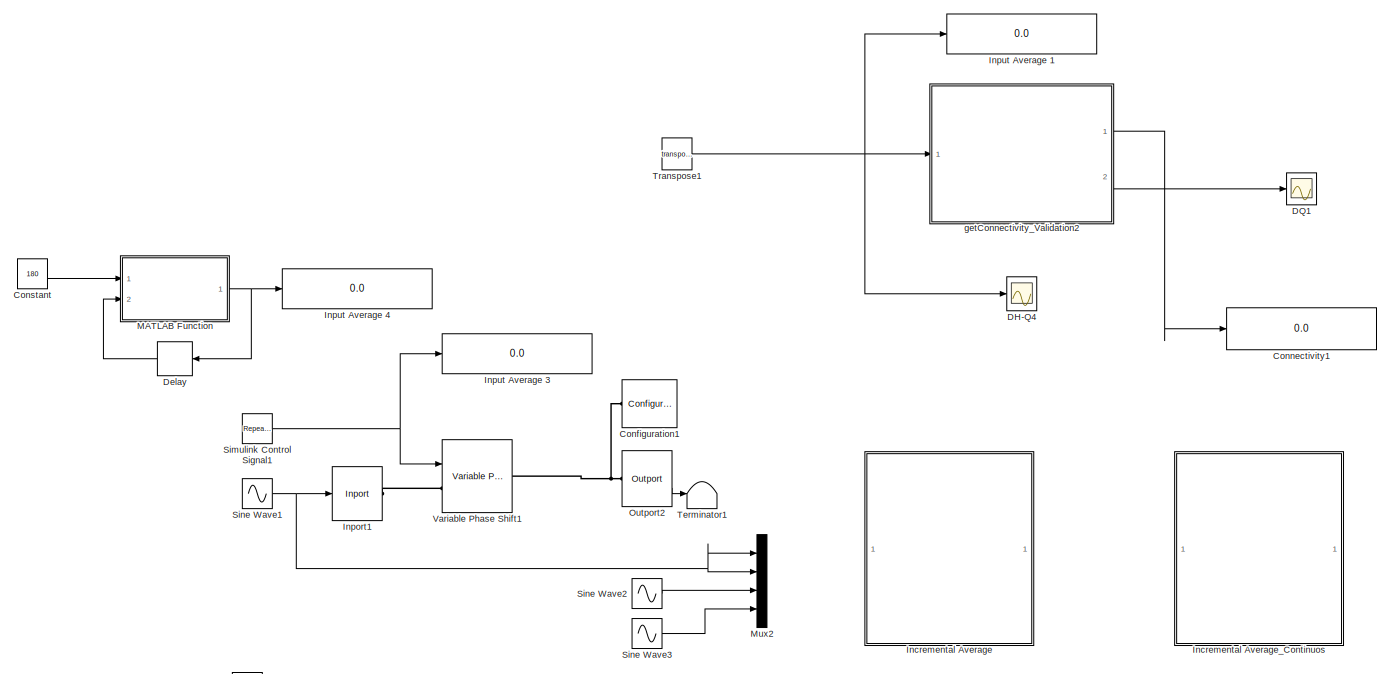
[diagram: root canvas - part 1/4, top left region]
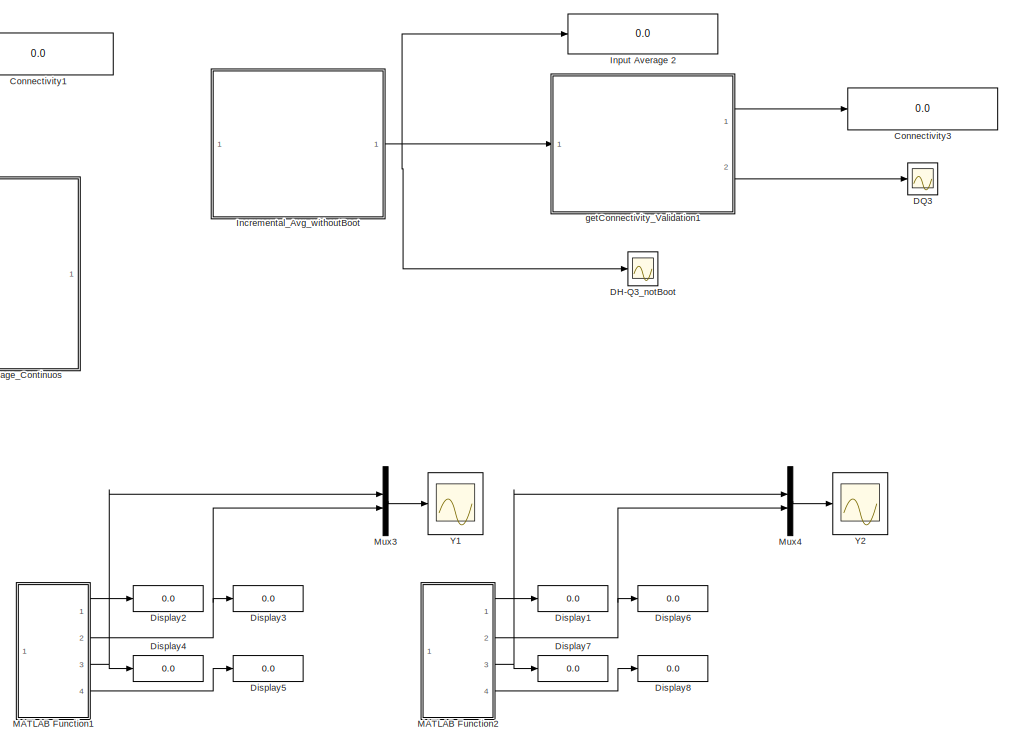
[diagram: root canvas - part 2/4, top right region]
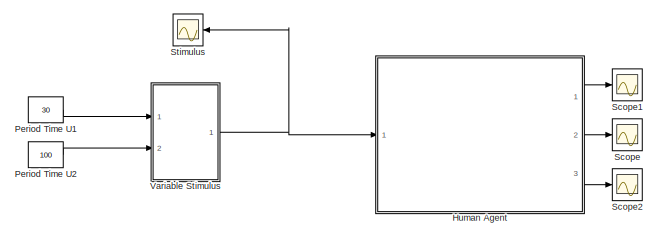
[diagram: root canvas - part 3/4, middle left region]
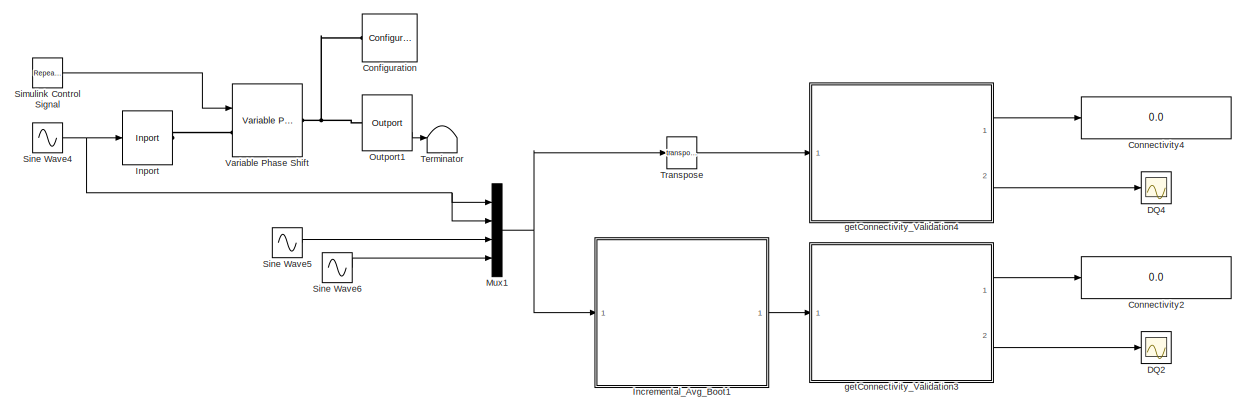
[diagram: root canvas - part 4/4, bottom center region]
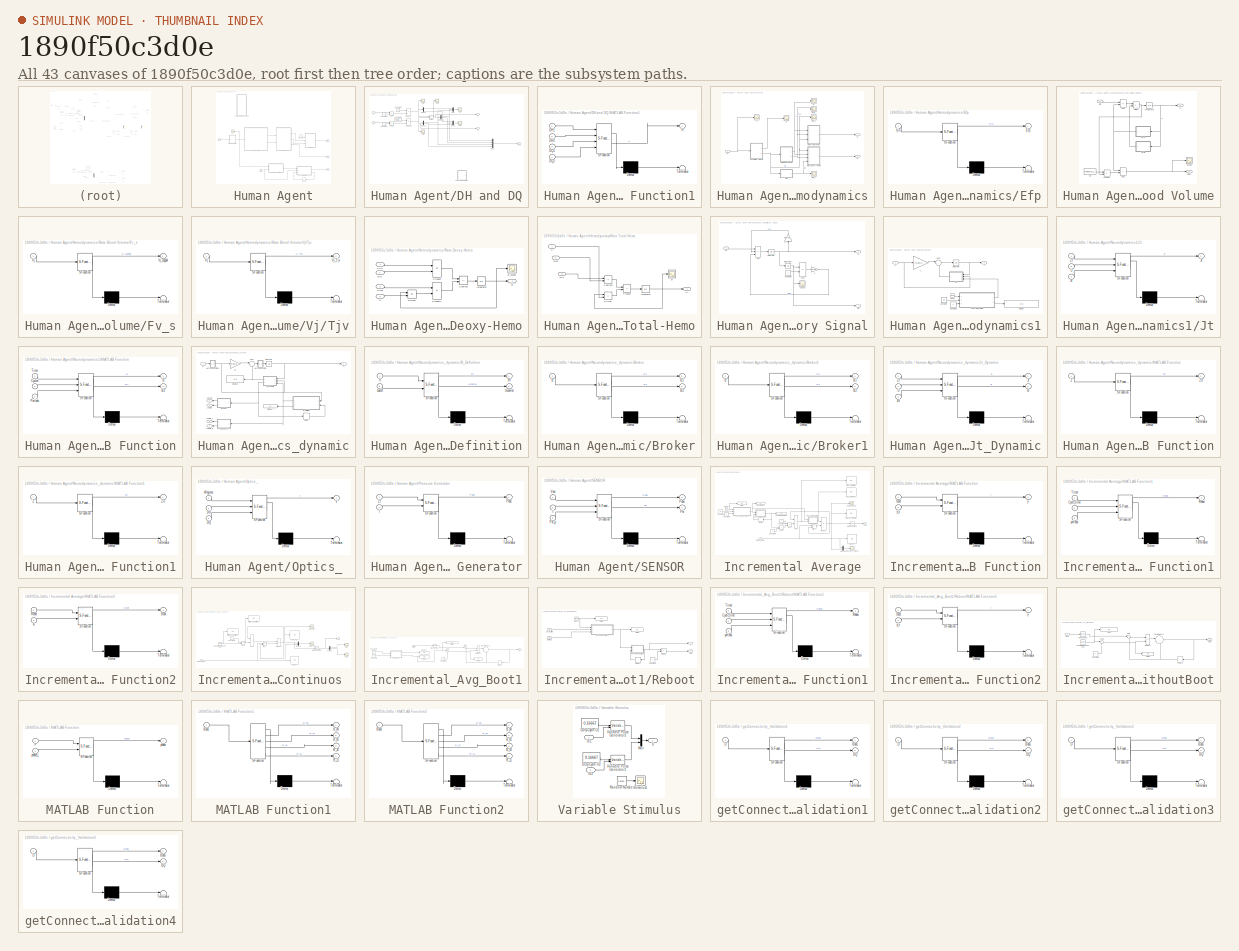
[diagram: thumbnail index - all 43 canvases of the model, root first then tree order]
MODEL slx_1890f50c3d0e
KIND model
CONFIG AbsTol = auto
CONFIG EnableMultiTasking = off
CONFIG FixedStep = auto
CONFIG MaxStep = auto
CONFIG MinStep = auto
CONFIG RelTol = 1e-3
CONFIG SampleTimeConstraint = Unconstrained
CONFIG SolverName = FixedStepAuto
CONFIG StartTime = 0.0
CONFIG StopTime = 120
BLOCK [Reference] Configuration  REF=simrfV2util1/Configuration
  Ports = [0, 0, 0, 0, 0, 1]
  SourceBlock = simrfV2util1/Configuration
  SourceProductBaseCode = RB
  SourceType = Configuration
BLOCK [Reference] Configuration1  REF=simrfV2util1/Configuration
  Commented = on
  Ports = [0, 0, 0, 0, 0, 1]
  SourceBlock = simrfV2util1/Configuration
  SourceProductBaseCode = RB
  SourceType = Configuration
BLOCK [Display] Connectivity1
  Commented = on
  Decimation = 1
  Ports = [1]
BLOCK [Display] Connectivity2
  Decimation = 1
  Ports = [1]
BLOCK [Display] Connectivity3
  Commented = on
  Decimation = 1
  Ports = [1]
BLOCK [Display] Connectivity4
  Decimation = 1
  Ports = [1]
BLOCK [Constant] Constant
  Commented = on
  Value = 180
BLOCK [Scope] DH-Q3_notBoot
  Commented = on
  Floating = off
  NumInputPorts = 1
  Ports = [1]
  ScopeSpecificationString = Simulink.scopes.TimeScopeBlockCfg('CurrentConfiguration', extmgr.ConfigurationSet(extmgr.Configuration('Core','General UI',true),extmgr.Configuration('Core','Source UI',true),extmgr.Configuration('Sources','WiredSimulink',true,'DataLoggingVariableName','ScopeData1'),extmgr.Configuration('Visuals','Time Domain',true,'SerializedDisplays',{struct('MinYLimReal','-0.10869','MaxYLimReal','0.9782','YLabe...<+1511ch>
BLOCK [Scope] DH-Q4
  Commented = on
  Floating = off
  NumInputPorts = 1
  Ports = [1]
  ScopeSpecificationString = Simulink.scopes.TimeScopeBlockCfg('CurrentConfiguration', extmgr.ConfigurationSet(extmgr.Configuration('Core','General UI',true),extmgr.Configuration('Core','Source UI',true),extmgr.Configuration('Sources','WiredSimulink',true,'DataLoggingVariableName','ScopeData3'),extmgr.Configuration('Visuals','Time Domain',true,'SerializedDisplays',{struct('MinYLimReal','-1.5','MaxYLimReal','1.5','YLabelReal',...<+1462ch>
BLOCK [Scope] DQ1
  Commented = on
  Floating = off
  NumInputPorts = 1
  Ports = [1]
  ScopeSpecificationString = Simulink.scopes.TimeScopeBlockCfg('CurrentConfiguration', extmgr.ConfigurationSet(extmgr.Configuration('Core','General UI',true,'FigureColor',[0 0 0]),extmgr.Configuration('Core','Source UI',true),extmgr.Configuration('Sources','WiredSimulink',true,'DataLoggingVariableName','ScopeData4'),extmgr.Configuration('Visuals','Time Domain',true,'SerializedDisplays',{struct('MinYLimReal','-0.29371','MaxYLi...<+2155ch>
BLOCK [Scope] DQ2
  Floating = off
  NumInputPorts = 1
  Ports = [1]
  ScopeSpecificationString = Simulink.scopes.TimeScopeBlockCfg('CurrentConfiguration', extmgr.ConfigurationSet(extmgr.Configuration('Core','General UI',true,'FigureColor',[0 0 0]),extmgr.Configuration('Core','Source UI',true),extmgr.Configuration('Sources','WiredSimulink',true,'DataLoggingVariableName','ScopeData1'),extmgr.Configuration('Visuals','Time Domain',true,'SerializedDisplays',{struct('MinYLimReal','-0.09792','MaxYLi...<+2102ch>
BLOCK [Scope] DQ3
  Commented = on
  Floating = off
  NumInputPorts = 1
  Ports = [1]
  ScopeSpecificationString = Simulink.scopes.TimeScopeBlockCfg('CurrentConfiguration', extmgr.ConfigurationSet(extmgr.Configuration('Core','General UI',true,'FigureColor',[0 0 0]),extmgr.Configuration('Core','Source UI',true),extmgr.Configuration('Sources','WiredSimulink',true,'DataLoggingVariableName','ScopeData2'),extmgr.Configuration('Visuals','Time Domain',true,'SerializedDisplays',{struct('MinYLimReal','-0.10869','MaxYLi...<+2057ch>
BLOCK [Scope] DQ4
  Floating = off
  NumInputPorts = 1
  Ports = [1]
  ScopeSpecificationString = Simulink.scopes.TimeScopeBlockCfg('CurrentConfiguration', extmgr.ConfigurationSet(extmgr.Configuration('Core','General UI',true,'FigureColor',[0 0 0]),extmgr.Configuration('Core','Source UI',true),extmgr.Configuration('Sources','WiredSimulink',true,'DataLoggingVariableName','ScopeData2'),extmgr.Configuration('Visuals','Time Domain',true,'SerializedDisplays',{struct('MinYLimReal','-0.09792','MaxYLi...<+2103ch>
BLOCK [Delay] Delay
  Commented = on
  DelayLength = 1
  InputPortMap = u0
  Ports = [1, 1]
BLOCK [Display] Display1
  Commented = on
  Decimation = 1
  Ports = [1]
BLOCK [Display] Display2
  Commented = on
  Decimation = 1
  Ports = [1]
BLOCK [Display] Display3
  Commented = on
  Decimation = 1
  Ports = [1]
BLOCK [Display] Display4
  Commented = on
  Decimation = 1
  Ports = [1]
BLOCK [Display] Display5
  Commented = on
  Decimation = 1
  Ports = [1]
BLOCK [Display] Display6
  Commented = on
  Decimation = 1
  Ports = [1]
BLOCK [Display] Display7
  Commented = on
  Decimation = 1
  Ports = [1]
BLOCK [Display] Display8
  Commented = on
  Decimation = 1
  Ports = [1]
BLOCK [SubSystem] Human Agent
  Commented = on
  Ports = [1, 3]
  RequestExecContextInheritance = off
BLOCK [Clock] Human Agent/Clock
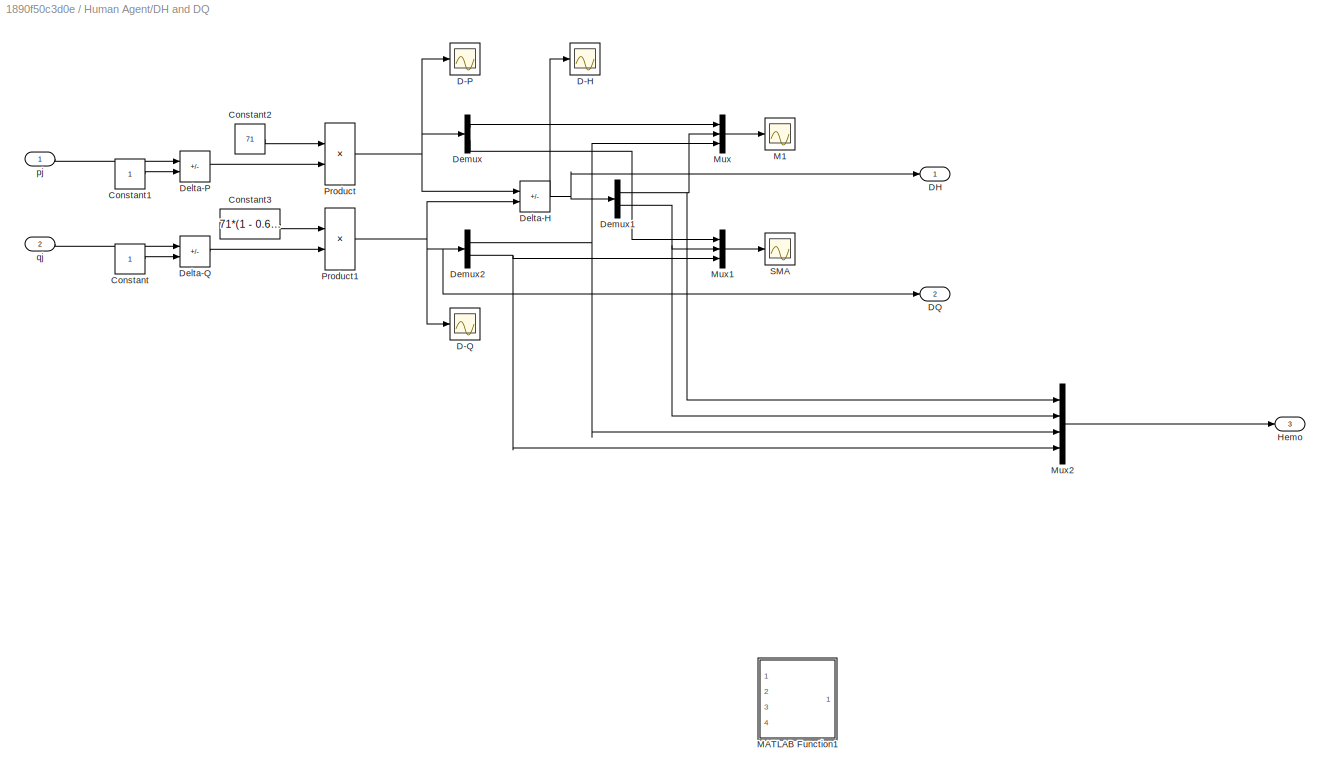
BLOCK [SubSystem] Human Agent/DH and DQ
  Ports = [2, 3]
  RequestExecContextInheritance = off
BLOCK [Constant] Human Agent/DH and DQ/Constant
BLOCK [Constant] Human Agent/DH and DQ/Constant1
BLOCK [Constant] Human Agent/DH and DQ/Constant2
  Value = 71
BLOCK [Constant] Human Agent/DH and DQ/Constant3
  Value = 71*(1 - 0.65)
BLOCK [Scope] Human Agent/DH and DQ/D-H
  Floating = off
  NumInputPorts = 1
  Ports = [1]
  ScopeSpecificationString = Simulink.scopes.TimeScopeBlockCfg('CurrentConfiguration', extmgr.ConfigurationSet(extmgr.Configuration('Core','General UI',true),extmgr.Configuration('Core','Source UI',true),extmgr.Configuration('Sources','WiredSimulink',true,'DataLoggingVariableName','ScopeData7'),extmgr.Configuration('Visuals','Time Domain',true,'SerializedDisplays',{struct('MinYLimReal','-2.91276','MaxYLimReal','17.16126','YLa...<+1449ch>
BLOCK [Scope] Human Agent/DH and DQ/D-P
  Floating = off
  NumInputPorts = 1
  Ports = [1]
  ScopeSpecificationString = Simulink.scopes.TimeScopeBlockCfg('CurrentConfiguration', extmgr.ConfigurationSet(extmgr.Configuration('Core','General UI',true),extmgr.Configuration('Core','Source UI',true),extmgr.Configuration('Sources','WiredSimulink',true,'DataLoggingVariableName','ScopeData5'),extmgr.Configuration('Visuals','Time Domain',true,'SerializedDisplays',{struct('MinYLimReal','-2.54989','MaxYLimReal','15.75385','YLa...<+1449ch>
BLOCK [Scope] Human Agent/DH and DQ/D-Q
  Floating = off
  NumInputPorts = 1
  Ports = [1]
  ScopeSpecificationString = Simulink.scopes.TimeScopeBlockCfg('CurrentConfiguration', extmgr.ConfigurationSet(extmgr.Configuration('Core','General UI',true),extmgr.Configuration('Core','Source UI',true),extmgr.Configuration('Sources','WiredSimulink',true,'DataLoggingVariableName','ScopeData6'),extmgr.Configuration('Visuals','Time Domain',true,'SerializedDisplays',{struct('MinYLimReal','-1.63975','MaxYLimReal','0.38869','YLab...<+1447ch>
BLOCK [Outport] Human Agent/DH and DQ/DH
BLOCK [Outport] Human Agent/DH and DQ/DQ
  Port = 2
BLOCK [Sum] Human Agent/DH and DQ/Delta-H
  IconShape = rectangular
  Inputs = +-
  Ports = [2, 1]
BLOCK [Sum] Human Agent/DH and DQ/Delta-P
  IconShape = rectangular
  Inputs = +-
  Ports = [2, 1]
BLOCK [Sum] Human Agent/DH and DQ/Delta-Q
  IconShape = rectangular
  Inputs = +-
  Ports = [2, 1]
BLOCK [Demux] Human Agent/DH and DQ/Demux
  Outputs = 2
  Ports = [1, 2]
BLOCK [Demux] Human Agent/DH and DQ/Demux1
  Outputs = 2
  Ports = [1, 2]
BLOCK [Demux] Human Agent/DH and DQ/Demux2
  Outputs = 2
  Ports = [1, 2]
BLOCK [Outport] Human Agent/DH and DQ/Hemo
  Port = 3
BLOCK [Scope] Human Agent/DH and DQ/M1
  Floating = off
  NumInputPorts = 1
  Ports = [1]
  ScopeSpecificationString = Simulink.scopes.TimeScopeBlockCfg('CurrentConfiguration', extmgr.ConfigurationSet(extmgr.Configuration('Core','General UI',true),extmgr.Configuration('Core','Source UI',true),extmgr.Configuration('Sources','WiredSimulink',true,'DataLoggingVariableName','ScopeData8'),extmgr.Configuration('Visuals','Time Domain',true,'SerializedDisplays',{struct('MinYLimReal','-2.54514','MaxYLimReal','8.43627','YLab...<+1735ch>
BLOCK [SubSystem] Human Agent/DH and DQ/MATLAB Function1
  Commented = on
  ErrorFcn = Stateflow.Translate.translate
  PermitHierarchicalResolution = ExplicitOnly
  Ports = [4, 1]
  RequestExecContextInheritance = off
  SFBlockType = MATLAB Function
  TreatAsAtomicUnit = on
BLOCK [Demux] Human Agent/DH and DQ/MATLAB Function1/ Demux 
  Outputs = 1
  Ports = [1, 1]
BLOCK [S-Function] Human Agent/DH and DQ/MATLAB Function1/ SFunction 
  EnableBusSupport = on
  FunctionName = sf_sfun
  PortCounts = [4 2]
  Ports = [4, 2]
  SFcnIsStateOwnerBlock = off
  SFunctionDeploymentMode = off
  Tag = Stateflow S-Function 24
BLOCK [Terminator] Human Agent/DH and DQ/MATLAB Function1/ Terminator 
BLOCK [Inport] Human Agent/DH and DQ/MATLAB Function1/DH1
BLOCK [Inport] Human Agent/DH and DQ/MATLAB Function1/DH2
  Port = 2
BLOCK [Inport] Human Agent/DH and DQ/MATLAB Function1/DQ1
  Port = 3
BLOCK [Inport] Human Agent/DH and DQ/MATLAB Function1/DQ2
  Port = 4
BLOCK [Outport] Human Agent/DH and DQ/MATLAB Function1/H
BLOCK [Mux] Human Agent/DH and DQ/Mux
  DisplayOption = bar
  Inputs = 3
  Ports = [3, 1]
BLOCK [Mux] Human Agent/DH and DQ/Mux1
  DisplayOption = bar
  Inputs = 3
  Ports = [3, 1]
BLOCK [Mux] Human Agent/DH and DQ/Mux2
  DisplayOption = bar
  Ports = [4, 1]
BLOCK [Product] Human Agent/DH and DQ/Product
  Ports = [2, 1]
BLOCK [Product] Human Agent/DH and DQ/Product1
  Ports = [2, 1]
BLOCK [Scope] Human Agent/DH and DQ/SMA
  Floating = off
  NumInputPorts = 1
  Ports = [1]
  ScopeSpecificationString = Simulink.scopes.TimeScopeBlockCfg('CurrentConfiguration', extmgr.ConfigurationSet(extmgr.Configuration('Core','General UI',true),extmgr.Configuration('Core','Source UI',true),extmgr.Configuration('Sources','WiredSimulink',true,'DataLoggingVariableName','ScopeData9'),extmgr.Configuration('Visuals','Time Domain',true,'SerializedDisplays',{struct('MinYLimReal','-3.33791','MaxYLimReal','17.25675','YLa...<+1774ch>
BLOCK [Inport] Human Agent/DH and DQ/pj
BLOCK [Inport] Human Agent/DH and DQ/qj
  Port = 2
BLOCK [Delay] Human Agent/Delay2
  DelayLength = 1
  InitialCondition = 0.0001
  InputPortMap = u0
  Ports = [1, 1]
BLOCK [Outport] Human Agent/Hemo
  Port = 3
BLOCK [SubSystem] Human Agent/Hemodynamics
  Ports = [1, 2]
  RequestExecContextInheritance = off
BLOCK [SubSystem] Human Agent/Hemodynamics/Efp
  ErrorFcn = Stateflow.Translate.translate
  PermitHierarchicalResolution = ExplicitOnly
  Ports = [1, 1]
  RequestExecContextInheritance = off
  SFBlockType = MATLAB Function
  TreatAsAtomicUnit = on
BLOCK [Demux] Human Agent/Hemodynamics/Efp/ Demux 
  Outputs = 1
  Ports = [1, 1]
BLOCK [S-Function] Human Agent/Hemodynamics/Efp/ SFunction 
  EnableBusSupport = on
  FunctionName = sf_sfun
  PortCounts = [1 2]
  Ports = [1, 2]
  SFcnIsStateOwnerBlock = off
  SFunctionDeploymentMode = off
  Tag = Stateflow S-Function 9
BLOCK [Terminator] Human Agent/Hemodynamics/Efp/ Terminator 
BLOCK [Outport] Human Agent/Hemodynamics/Efp/Efp
BLOCK [Inport] Human Agent/Hemodynamics/Efp/fjin
BLOCK [Scope] Human Agent/Hemodynamics/Efp_1
  Floating = off
  NumInputPorts = 1
  Ports = [1]
  ScopeSpecificationString = Simulink.scopes.TimeScopeBlockCfg('CurrentConfiguration', extmgr.ConfigurationSet(extmgr.Configuration('Core','General UI',true),extmgr.Configuration('Core','Source UI',true),extmgr.Configuration('Sources','WiredSimulink',true,'DataLoggingVariableName','ScopeData7'),extmgr.Configuration('Visuals','Time Domain',true,'SerializedDisplays',{struct('MinYLimReal','0.87922','MaxYLimReal','1.03497','YLabe...<+1400ch>
BLOCK [Scope] Human Agent/Hemodynamics/Fjin_1
  Floating = off
  NumInputPorts = 1
  Ports = [1]
  ScopeSpecificationString = Simulink.scopes.TimeScopeBlockCfg('CurrentConfiguration', extmgr.ConfigurationSet(extmgr.Configuration('Core','General UI',true),extmgr.Configuration('Core','Source UI',true),extmgr.Configuration('Sources','WiredSimulink',true,'DataLoggingVariableName','ScopeData6'),extmgr.Configuration('Visuals','Time Domain',true,'SerializedDisplays',{struct('MinYLimReal','0.95597','MaxYLimReal','1.16405','YLabe...<+1403ch>
BLOCK [Scope] Human Agent/Hemodynamics/Fjout
  Floating = off
  NumInputPorts = 1
  Ports = [1]
  ScopeSpecificationString = Simulink.scopes.TimeScopeBlockCfg('CurrentConfiguration', extmgr.ConfigurationSet(extmgr.Configuration('Core','General UI',true),extmgr.Configuration('Core','Source UI',true),extmgr.Configuration('Sources','WiredSimulink',true,'DataLoggingVariableName','ScopeData5'),extmgr.Configuration('Visuals','Time Domain',true,'SerializedDisplays',{struct('MinYLimReal','0.96309','MaxYLimReal','1.1501','YLabel...<+1400ch>
BLOCK [Outport] Human Agent/Hemodynamics/Pj
BLOCK [SubSystem] Human Agent/Hemodynamics/Rate Blood Volume
  Ports = [1, 2]
  RequestExecContextInheritance = off
BLOCK [Sum] Human Agent/Hemodynamics/Rate Blood Volume/Add
  IconShape = rectangular
  Inputs = +-
  Ports = [2, 1]
BLOCK [Sum] Human Agent/Hemodynamics/Rate Blood Volume/Add1
  IconShape = rectangular
  Ports = [2, 1]
BLOCK [Product] Human Agent/Hemodynamics/Rate Blood Volume/Divide
  Inputs = */
  Ports = [2, 1]
BLOCK [Inport] Human Agent/Hemodynamics/Rate Blood Volume/Fjin
BLOCK [Outport] Human Agent/Hemodynamics/Rate Blood Volume/Fjout
  Port = 2
BLOCK [SubSystem] Human Agent/Hemodynamics/Rate Blood Volume/Fv_s
  ErrorFcn = Stateflow.Translate.translate
  PermitHierarchicalResolution = ExplicitOnly
  Ports = [1, 1]
  RequestExecContextInheritance = off
  SFBlockType = MATLAB Function
  TreatAsAtomicUnit = on
BLOCK [Demux] Human Agent/Hemodynamics/Rate Blood Volume/Fv_s/ Demux 
  Outputs = 1
  Ports = [1, 1]
BLOCK [S-Function] Human Agent/Hemodynamics/Rate Blood Volume/Fv_s/ SFunction 
  EnableBusSupport = on
  FunctionName = sf_sfun
  PortCounts = [1 2]
  Ports = [1, 2]
  SFcnIsStateOwnerBlock = off
  SFunctionDeploymentMode = off
  Tag = Stateflow S-Function 11
BLOCK [Terminator] Human Agent/Hemodynamics/Rate Blood Volume/Fv_s/ Terminator 
BLOCK [Inport] Human Agent/Hemodynamics/Rate Blood Volume/Fv_s/Vj
BLOCK [Outport] Human Agent/Hemodynamics/Rate Blood Volume/Fv_s/Vj_expphi
BLOCK [Integrator] Human Agent/Hemodynamics/Rate Blood Volume/Integrator
  InitialCondition = exp([0;0])
  Ports = [1, 1]
BLOCK [Product] Human Agent/Hemodynamics/Rate Blood Volume/Product
  Ports = [2, 1]
BLOCK [Scope] Human Agent/Hemodynamics/Rate Blood Volume/Scope
  Floating = off
  NumInputPorts = 1
  Ports = [1]
  ScopeSpecificationString = Simulink.scopes.TimeScopeBlockCfg('CurrentConfiguration', extmgr.ConfigurationSet(extmgr.Configuration('Core','General UI',true),extmgr.Configuration('Core','Source UI',true),extmgr.Configuration('Sources','WiredSimulink',true,'DataLoggingVariableName','ScopeData2'),extmgr.Configuration('Visuals','Time Domain',true,'SerializedDisplays',{struct('MinYLimReal','0.96417','MaxYLimReal','1.14994','YLabe...<+1372ch>
BLOCK [Constant] Human Agent/Hemodynamics/Rate Blood Volume/Tjv
  Value = 2*exp([0;1])
BLOCK [Outport] Human Agent/Hemodynamics/Rate Blood Volume/Vj
BLOCK [SubSystem] Human Agent/Hemodynamics/Rate Blood Volume/Vj//Tjv
  ErrorFcn = Stateflow.Translate.translate
  PermitHierarchicalResolution = ExplicitOnly
  Ports = [1, 1]
  RequestExecContextInheritance = off
  SFBlockType = MATLAB Function
  TreatAsAtomicUnit = on
BLOCK [Demux] Human Agent/Hemodynamics/Rate Blood Volume/Vj//Tjv/ Demux 
  Outputs = 1
  Ports = [1, 1]
BLOCK [S-Function] Human Agent/Hemodynamics/Rate Blood Volume/Vj//Tjv/ SFunction 
  EnableBusSupport = on
  FunctionName = sf_sfun
  PortCounts = [1 2]
  Ports = [1, 2]
  SFcnIsStateOwnerBlock = off
  SFunctionDeploymentMode = off
  Tag = Stateflow S-Function 12
BLOCK [Terminator] Human Agent/Hemodynamics/Rate Blood Volume/Vj//Tjv/ Terminator 
BLOCK [Inport] Human Agent/Hemodynamics/Rate Blood Volume/Vj//Tjv/Vj
BLOCK [Outport] Human Agent/Hemodynamics/Rate Blood Volume/Vj//Tjv/Vj_Tjv
BLOCK [SubSystem] Human Agent/Hemodynamics/Rate-Deoxy-Hemo
  Ports = [4, 1]
  RequestExecContextInheritance = off
BLOCK [Product] Human Agent/Hemodynamics/Rate-Deoxy-Hemo/Divide
  Inputs = */
  Ports = [2, 1]
BLOCK [Inport] Human Agent/Hemodynamics/Rate-Deoxy-Hemo/Efp
  Port = 4
BLOCK [Inport] Human Agent/Hemodynamics/Rate-Deoxy-Hemo/Fjin
BLOCK [Inport] Human Agent/Hemodynamics/Rate-Deoxy-Hemo/Fjout
  Port = 3
BLOCK [Integrator] Human Agent/Hemodynamics/Rate-Deoxy-Hemo/Integrator
  InitialCondition = exp([0;0])
  Ports = [1, 1]
BLOCK [Product] Human Agent/Hemodynamics/Rate-Deoxy-Hemo/Product
  Ports = [2, 1]
BLOCK [Product] Human Agent/Hemodynamics/Rate-Deoxy-Hemo/Product1
  Ports = [2, 1]
BLOCK [Sum] Human Agent/Hemodynamics/Rate-Deoxy-Hemo/Subtract
  IconShape = rectangular
  Inputs = +-
  Ports = [2, 1]
BLOCK [Inport] Human Agent/Hemodynamics/Rate-Deoxy-Hemo/Vj
  Port = 2
BLOCK [Outport] Human Agent/Hemodynamics/Rate-Deoxy-Hemo/qj
BLOCK [Scope] Human Agent/Hemodynamics/Rate-Deoxy-Hemo/qj_scope
  Floating = off
  NumInputPorts = 1
  Ports = [1]
  ScopeSpecificationString = Simulink.scopes.TimeScopeBlockCfg('CurrentConfiguration', extmgr.ConfigurationSet(extmgr.Configuration('Core','General UI',true),extmgr.Configuration('Core','Source UI',true),extmgr.Configuration('Sources','WiredSimulink',true,'DataLoggingVariableName','ScopeData1'),extmgr.Configuration('Visuals','Time Domain',true,'SerializedDisplays',{struct('MinYLimReal','0.9335','MaxYLimReal','1.01624','YLabel...<+1411ch>
BLOCK [SubSystem] Human Agent/Hemodynamics/Rate-Total-Hemo
  Ports = [3, 1]
  RequestExecContextInheritance = off
BLOCK [Product] Human Agent/Hemodynamics/Rate-Total-Hemo/Divide
  Inputs = */
  Ports = [2, 1]
BLOCK [Inport] Human Agent/Hemodynamics/Rate-Total-Hemo/Fjin
  Port = 3
BLOCK [Inport] Human Agent/Hemodynamics/Rate-Total-Hemo/Fjout
  Port = 2
BLOCK [Integrator] Human Agent/Hemodynamics/Rate-Total-Hemo/Integrator
  InitialCondition = exp([0;0])
  Ports = [1, 1]
BLOCK [Outport] Human Agent/Hemodynamics/Rate-Total-Hemo/Pj
BLOCK [Product] Human Agent/Hemodynamics/Rate-Total-Hemo/Product
  Ports = [2, 1]
BLOCK [Sum] Human Agent/Hemodynamics/Rate-Total-Hemo/Subtract
  IconShape = rectangular
  Inputs = +-
  Ports = [2, 1]
BLOCK [Inport] Human Agent/Hemodynamics/Rate-Total-Hemo/Vj
BLOCK [Scope] Human Agent/Hemodynamics/Rate-Total-Hemo/pj
  Floating = off
  NumInputPorts = 1
  Ports = [1]
  ScopeSpecificationString = Simulink.scopes.TimeScopeBlockCfg('CurrentConfiguration', extmgr.ConfigurationSet(extmgr.Configuration('Core','General UI',true),extmgr.Configuration('Core','Source UI',true),extmgr.Configuration('Sources','WiredSimulink',true,'DataLoggingVariableName','ScopeData2'),extmgr.Configuration('Visuals','Time Domain',true,'SerializedDisplays',{struct('MinYLimReal','0.96327','MaxYLimReal','1.22259','YLabe...<+1415ch>
BLOCK [Scope] Human Agent/Hemodynamics/Sj
  Floating = off
  NumInputPorts = 1
  Ports = [1]
  ScopeSpecificationString = Simulink.scopes.TimeScopeBlockCfg('CurrentConfiguration', extmgr.ConfigurationSet(extmgr.Configuration('Core','General UI',true),extmgr.Configuration('Core','Source UI',true),extmgr.Configuration('Sources','WiredSimulink',true,'DataLoggingVariableName','ScopeData1'),extmgr.Configuration('Visuals','Time Domain',true,'SerializedDisplays',{struct('MinYLimReal','-0.04954','MaxYLimReal','0.04574','YLab...<+1438ch>
BLOCK [SubSystem] Human Agent/Hemodynamics/Vasodilatory Signal
  Ports = [1, 2]
  RequestExecContextInheritance = off
BLOCK [Sum] Human Agent/Hemodynamics/Vasodilatory Signal/Add
  IconShape = rectangular
  Inputs = +--
  Ports = [3, 1]
BLOCK [Sum] Human Agent/Hemodynamics/Vasodilatory Signal/Add1
  IconShape = rectangular
  Inputs = +-
  Ports = [2, 1]
BLOCK [Constant] Human Agent/Hemodynamics/Vasodilatory Signal/Constant1
BLOCK [Outport] Human Agent/Hemodynamics/Vasodilatory Signal/Fjin
  Port = 2
BLOCK [Integrator] Human Agent/Hemodynamics/Vasodilatory Signal/Integrator
  Ports = [1, 1]
BLOCK [Integrator] Human Agent/Hemodynamics/Vasodilatory Signal/Integrator1
  InitialCondition = exp([0;0])
  Ports = [1, 1]
BLOCK [Gain] Human Agent/Hemodynamics/Vasodilatory Signal/K
  Gain = 0.64*exp([0;0.05])
  NameLocation = right
BLOCK [Scope] Human Agent/Hemodynamics/Vasodilatory Signal/Scope1
  Floating = off
  NumInputPorts = 1
  Ports = [1]
  ScopeSpecificationString = Simulink.scopes.TimeScopeBlockCfg('CurrentConfiguration', extmgr.ConfigurationSet(extmgr.Configuration('Core','General UI',true),extmgr.Configuration('Core','Source UI',true),extmgr.Configuration('Sources','WiredSimulink',true,'DataLoggingVariableName','ScopeData1'),extmgr.Configuration('Visuals','Time Domain',true,'SerializedDisplays',{struct('MinYLimReal','-0.02898','MaxYLimReal','0.08445','YLab...<+1370ch>
BLOCK [Outport] Human Agent/Hemodynamics/Vasodilatory Signal/Sj
BLOCK [Gain] Human Agent/Hemodynamics/Vasodilatory Signal/Yj
  Gain = 0.32*exp([0;0.05])
BLOCK [Inport] Human Agent/Hemodynamics/Vasodilatory Signal/Zj
BLOCK [Scope] Human Agent/Hemodynamics/Vj
  Floating = off
  NumInputPorts = 1
  Ports = [1]
  ScopeSpecificationString = Simulink.scopes.TimeScopeBlockCfg('CurrentConfiguration', extmgr.ConfigurationSet(extmgr.Configuration('Core','General UI',true),extmgr.Configuration('Core','Source UI',true),extmgr.Configuration('Sources','WiredSimulink',true,'DataLoggingVariableName','ScopeData4'),extmgr.Configuration('Visuals','Time Domain',true,'SerializedDisplays',{struct('MinYLimReal','0.99041','MaxYLimReal','1.04043','YLabe...<+1398ch>
BLOCK [Scope] Human Agent/Hemodynamics/Z
  Floating = off
  NumInputPorts = 1
  Ports = [1]
  ScopeSpecificationString = Simulink.scopes.TimeScopeBlockCfg('CurrentConfiguration', extmgr.ConfigurationSet(extmgr.Configuration('Core','General UI',true),extmgr.Configuration('Core','Source UI',true),extmgr.Configuration('Sources','WiredSimulink',true),extmgr.Configuration('Visuals','Time Domain',true,'SerializedDisplays',{struct('MinYLimReal','-0.0098','MaxYLimReal','0.05168','YLabelReal','','MinYLimMag','0.00000','MaxYL...<+1357ch>
BLOCK [Inport] Human Agent/Hemodynamics/Zj
BLOCK [Outport] Human Agent/Hemodynamics/qj
  Port = 2
BLOCK [SubSystem] Human Agent/Neurodynamics1
  Ports = [1, 1]
  RequestExecContextInheritance = off
BLOCK [Gain] Human Agent/Neurodynamics1/C
  Gain = [0.08 0;0.06 0]
  Multiplication = Matrix(K*u)
BLOCK [Clock] Human Agent/Neurodynamics1/Clock
BLOCK [Constant] Human Agent/Neurodynamics1/Constant
  Value = 30
BLOCK [Constant] Human Agent/Neurodynamics1/Constant1
  Value = 6
BLOCK [Display] Human Agent/Neurodynamics1/Display
  Decimation = 1
  Ports = [1]
BLOCK [Integrator] Human Agent/Neurodynamics1/Integrator
  Ports = [1, 1]
BLOCK [SubSystem] Human Agent/Neurodynamics1/Jt
  ErrorFcn = Stateflow.Translate.translate
  PermitHierarchicalResolution = ExplicitOnly
  Ports = [3, 1]
  RequestExecContextInheritance = off
  SFBlockType = MATLAB Function
  TreatAsAtomicUnit = on
BLOCK [Demux] Human Agent/Neurodynamics1/Jt/ Demux 
  Outputs = 1
  Ports = [1, 1]
BLOCK [S-Function] Human Agent/Neurodynamics1/Jt/ SFunction 
  EnableBusSupport = on
  FunctionName = sf_sfun
  PortCounts = [3 2]
  Ports = [3, 2]
  SFcnIsStateOwnerBlock = off
  SFunctionDeploymentMode = off
  Tag = Stateflow S-Function 13
BLOCK [Terminator] Human Agent/Neurodynamics1/Jt/ Terminator 
BLOCK [Inport] Human Agent/Neurodynamics1/Jt/B
  Port = 3
BLOCK [Outport] Human Agent/Neurodynamics1/Jt/Jt
BLOCK [Inport] Human Agent/Neurodynamics1/Jt/U
  Port = 2
BLOCK [Inport] Human Agent/Neurodynamics1/Jt/Zt
BLOCK [SubSystem] Human Agent/Neurodynamics1/MATLAB Function
  ErrorFcn = Stateflow.Translate.translate
  PermitHierarchicalResolution = ExplicitOnly
  Ports = [3, 2]
  RequestExecContextInheritance = off
  SFBlockType = MATLAB Function
  TreatAsAtomicUnit = on
BLOCK [Demux] Human Agent/Neurodynamics1/MATLAB Function/ Demux 
  Outputs = 1
  Ports = [1, 1]
BLOCK [S-Function] Human Agent/Neurodynamics1/MATLAB Function/ SFunction 
  EnableBusSupport = on
  FunctionName = sf_sfun
  PortCounts = [3 3]
  Ports = [3, 3]
  SFcnIsStateOwnerBlock = off
  SFunctionDeploymentMode = off
  Tag = Stateflow S-Function 14
BLOCK [Terminator] Human Agent/Neurodynamics1/MATLAB Function/ Terminator 
BLOCK [Outport] Human Agent/Neurodynamics1/MATLAB Function/B
BLOCK [Outport] Human Agent/Neurodynamics1/MATLAB Function/B2
  Port = 2
BLOCK [Inport] Human Agent/Neurodynamics1/MATLAB Function/Cycles
  Port = 2
BLOCK [Inport] Human Agent/Neurodynamics1/MATLAB Function/Periods
  Port = 3
BLOCK [Inport] Human Agent/Neurodynamics1/MATLAB Function/Time
BLOCK [Sum] Human Agent/Neurodynamics1/Sum
  Inputs = |++
  Ports = [2, 1]
BLOCK [Inport] Human Agent/Neurodynamics1/U
BLOCK [Outport] Human Agent/Neurodynamics1/Z
BLOCK [SubSystem] Human Agent/Neurodynamics_dynamic
  Commented = on
  Ports = [1, 5]
  RequestExecContextInheritance = off
BLOCK [Outport] Human Agent/Neurodynamics_dynamic/ActualB_1
  Port = 2
BLOCK [Outport] Human Agent/Neurodynamics_dynamic/ActualB_2
  Port = 4
BLOCK [SubSystem] Human Agent/Neurodynamics_dynamic/B_Definition
  ErrorFcn = Stateflow.Translate.translate
  PermitHierarchicalResolution = ExplicitOnly
  Ports = [2, 2]
  RequestExecContextInheritance = off
  SFBlockType = MATLAB Function
  TreatAsAtomicUnit = on
BLOCK [Demux] Human Agent/Neurodynamics_dynamic/B_Definition/ Demux 
  Outputs = 1
  Ports = [1, 1]
BLOCK [S-Function] Human Agent/Neurodynamics_dynamic/B_Definition/ SFunction 
  EnableBusSupport = on
  FunctionName = sf_sfun
  PortCounts = [2 3]
  Ports = [2, 3]
  SFcnIsStateOwnerBlock = off
  SFunctionDeploymentMode = off
  Tag = Stateflow S-Function 16
BLOCK [Terminator] Human Agent/Neurodynamics_dynamic/B_Definition/ Terminator 
BLOCK [Outport] Human Agent/Neurodynamics_dynamic/B_Definition/Bt
BLOCK [Inport] Human Agent/Neurodynamics_dynamic/B_Definition/LastB
  Port = 2
BLOCK [Inport] Human Agent/Neurodynamics_dynamic/B_Definition/U
BLOCK [Outport] Human Agent/Neurodynamics_dynamic/B_Definition/Ucontrol
  Port = 2
BLOCK [SubSystem] Human Agent/Neurodynamics_dynamic/Broker
  ErrorFcn = Stateflow.Translate.translate
  PermitHierarchicalResolution = ExplicitOnly
  Ports = [1, 2]
  RequestExecContextInheritance = off
  SFBlockType = MATLAB Function
  TreatAsAtomicUnit = on
BLOCK [Demux] Human Agent/Neurodynamics_dynamic/Broker/ Demux 
  Outputs = 1
  Ports = [1, 1]
BLOCK [S-Function] Human Agent/Neurodynamics_dynamic/Broker/ SFunction 
  EnableBusSupport = on
  FunctionName = sf_sfun
  PortCounts = [1 3]
  Ports = [1, 3]
  SFcnIsStateOwnerBlock = off
  SFunctionDeploymentMode = off
  Tag = Stateflow S-Function 17
BLOCK [Terminator] Human Agent/Neurodynamics_dynamic/Broker/ Terminator 
BLOCK [Inport] Human Agent/Neurodynamics_dynamic/Broker/B
BLOCK [Outport] Human Agent/Neurodynamics_dynamic/Broker/B1
BLOCK [Outport] Human Agent/Neurodynamics_dynamic/Broker/B2
  Port = 2
BLOCK [SubSystem] Human Agent/Neurodynamics_dynamic/Broker1
  ErrorFcn = Stateflow.Translate.translate
  PermitHierarchicalResolution = ExplicitOnly
  Ports = [1, 2]
  RequestExecContextInheritance = off
  SFBlockType = MATLAB Function
  TreatAsAtomicUnit = on
BLOCK [Demux] Human Agent/Neurodynamics_dynamic/Broker1/ Demux 
  Outputs = 1
  Ports = [1, 1]
BLOCK [S-Function] Human Agent/Neurodynamics_dynamic/Broker1/ SFunction 
  EnableBusSupport = on
  FunctionName = sf_sfun
  PortCounts = [1 3]
  Ports = [1, 3]
  SFcnIsStateOwnerBlock = off
  SFunctionDeploymentMode = off
  Tag = Stateflow S-Function 18
BLOCK [Terminator] Human Agent/Neurodynamics_dynamic/Broker1/ Terminator 
BLOCK [Inport] Human Agent/Neurodynamics_dynamic/Broker1/B
BLOCK [Outport] Human Agent/Neurodynamics_dynamic/Broker1/B1
BLOCK [Outport] Human Agent/Neurodynamics_dynamic/Broker1/B2
  Port = 2
BLOCK [Gain] Human Agent/Neurodynamics_dynamic/C1
  Gain = [0.08 0;0.06 0]
  Multiplication = Matrix(K*u) (u vector)
BLOCK [Delay] Human Agent/Neurodynamics_dynamic/Delay
  DelayLength = 1
  InitialCondition = 0
  InputPortMap = u0
  NameLocation = top
  Ports = [1, 1]
BLOCK [Display] Human Agent/Neurodynamics_dynamic/Display5
  Decimation = 1
  Ports = [1]
BLOCK [Display] Human Agent/Neurodynamics_dynamic/Display7
  Decimation = 1
  Ports = [1]
BLOCK [Integrator] Human Agent/Neurodynamics_dynamic/Integrator
  Ports = [1, 1]
BLOCK [SubSystem] Human Agent/Neurodynamics_dynamic/Jt_Dynamic
  ErrorFcn = Stateflow.Translate.translate
  PermitHierarchicalResolution = ExplicitOnly
  Ports = [3, 2]
  RequestExecContextInheritance = off
  SFBlockType = MATLAB Function
  TreatAsAtomicUnit = on
BLOCK [Demux] Human Agent/Neurodynamics_dynamic/Jt_Dynamic/ Demux 
  Outputs = 1
  Ports = [1, 1]
BLOCK [S-Function] Human Agent/Neurodynamics_dynamic/Jt_Dynamic/ SFunction 
  EnableBusSupport = on
  FunctionName = sf_sfun
  PortCounts = [3 3]
  Ports = [3, 3]
  SFcnIsStateOwnerBlock = off
  SFunctionDeploymentMode = off
  Tag = Stateflow S-Function 20
BLOCK [Terminator] Human Agent/Neurodynamics_dynamic/Jt_Dynamic/ Terminator 
BLOCK [Outport] Human Agent/Neurodynamics_dynamic/Jt_Dynamic/B
  Port = 2
BLOCK [Inport] Human Agent/Neurodynamics_dynamic/Jt_Dynamic/Bt
  Port = 3
BLOCK [Outport] Human Agent/Neurodynamics_dynamic/Jt_Dynamic/Jt
BLOCK [Inport] Human Agent/Neurodynamics_dynamic/Jt_Dynamic/U
  Port = 2
BLOCK [Inport] Human Agent/Neurodynamics_dynamic/Jt_Dynamic/Zt
BLOCK [Outport] Human Agent/Neurodynamics_dynamic/LastB2
  Port = 5
BLOCK [Outport] Human Agent/Neurodynamics_dynamic/Last_B1
  Port = 3
BLOCK [SubSystem] Human Agent/Neurodynamics_dynamic/MATLAB Function
  ErrorFcn = Stateflow.Translate.translate
  PermitHierarchicalResolution = ExplicitOnly
  Ports = [1, 1]
  RequestExecContextInheritance = off
  SFBlockType = MATLAB Function
  TreatAsAtomicUnit = on
BLOCK [Demux] Human Agent/Neurodynamics_dynamic/MATLAB Function/ Demux 
  Outputs = 1
  Ports = [1, 1]
BLOCK [S-Function] Human Agent/Neurodynamics_dynamic/MATLAB Function/ SFunction 
  EnableBusSupport = on
  FunctionName = sf_sfun
  PortCounts = [1 2]
  Ports = [1, 2]
  SFcnIsStateOwnerBlock = off
  SFunctionDeploymentMode = off
  Tag = Stateflow S-Function 21
BLOCK [Terminator] Human Agent/Neurodynamics_dynamic/MATLAB Function/ Terminator 
BLOCK [Inport] Human Agent/Neurodynamics_dynamic/MATLAB Function/Z
BLOCK [Outport] Human Agent/Neurodynamics_dynamic/MATLAB Function/Zn
BLOCK [SubSystem] Human Agent/Neurodynamics_dynamic/MATLAB Function1
  ErrorFcn = Stateflow.Translate.translate
  PermitHierarchicalResolution = ExplicitOnly
  Ports = [1, 1]
  RequestExecContextInheritance = off
  SFBlockType = MATLAB Function
  TreatAsAtomicUnit = on
BLOCK [Demux] Human Agent/Neurodynamics_dynamic/MATLAB Function1/ Demux 
  Outputs = 1
  Ports = [1, 1]
BLOCK [S-Function] Human Agent/Neurodynamics_dynamic/MATLAB Function1/ SFunction 
  EnableBusSupport = on
  FunctionName = sf_sfun
  PortCounts = [1 2]
  Ports = [1, 2]
  SFcnIsStateOwnerBlock = off
  SFunctionDeploymentMode = off
  Tag = Stateflow S-Function 22
BLOCK [Terminator] Human Agent/Neurodynamics_dynamic/MATLAB Function1/ Terminator 
BLOCK [Inport] Human Agent/Neurodynamics_dynamic/MATLAB Function1/Z
BLOCK [Outport] Human Agent/Neurodynamics_dynamic/MATLAB Function1/Zn
BLOCK [Sum] Human Agent/Neurodynamics_dynamic/Sum
  Inputs = |++
  Ports = [2, 1]
BLOCK [Inport] Human Agent/Neurodynamics_dynamic/U
BLOCK [Outport] Human Agent/Neurodynamics_dynamic/Z
BLOCK [SubSystem] Human Agent/Optics_
  ErrorFcn = Stateflow.Translate.translate
  PermitHierarchicalResolution = ExplicitOnly
  Ports = [3, 1]
  RequestExecContextInheritance = off
  SFBlockType = MATLAB Function
  TreatAsAtomicUnit = on
BLOCK [Demux] Human Agent/Optics_/ Demux 
  Outputs = 1
  Ports = [1, 1]
BLOCK [S-Function] Human Agent/Optics_/ SFunction 
  EnableBusSupport = on
  FunctionName = sf_sfun
  PortCounts = [3 2]
  Ports = [3, 2]
  SFcnIsStateOwnerBlock = off
  SFunctionDeploymentMode = off
  Tag = Stateflow S-Function 15
BLOCK [Terminator] Human Agent/Optics_/ Terminator 
BLOCK [Inport] Human Agent/Optics_/DH
  Port = 2
BLOCK [Inport] Human Agent/Optics_/DQ
  Port = 3
BLOCK [Outport] Human Agent/Optics_/Y
BLOCK [Inport] Human Agent/Optics_/nRegions
BLOCK [Outport] Human Agent/Pobs
  Port = 2
BLOCK [SubSystem] Human Agent/Pressure Generator
  ErrorFcn = Stateflow.Translate.translate
  PermitHierarchicalResolution = ExplicitOnly
  Ports = [2, 1]
  RequestExecContextInheritance = off
  SFBlockType = MATLAB Function
  TreatAsAtomicUnit = on
BLOCK [Demux] Human Agent/Pressure Generator/ Demux 
  Outputs = 1
  Ports = [1, 1]
BLOCK [S-Function] Human Agent/Pressure Generator/ SFunction 
  EnableBusSupport = on
  FunctionName = sf_sfun
  PortCounts = [2 2]
  Ports = [2, 2]
  SFcnIsStateOwnerBlock = off
  SFunctionDeploymentMode = off
  Tag = Stateflow S-Function 19
BLOCK [Terminator] Human Agent/Pressure Generator/ Terminator 
BLOCK [Outport] Human Agent/Pressure Generator/Pobs
BLOCK [Inport] Human Agent/Pressure Generator/Zt
BLOCK [Inport] Human Agent/Pressure Generator/t
  Port = 2
BLOCK [SubSystem] Human Agent/SENSOR
  ErrorFcn = Stateflow.Translate.translate
  PermitHierarchicalResolution = ExplicitOnly
  Ports = [3, 2]
  RequestExecContextInheritance = off
  SFBlockType = MATLAB Function
  TreatAsAtomicUnit = on
BLOCK [Demux] Human Agent/SENSOR/ Demux 
  Outputs = 1
  Ports = [1, 1]
BLOCK [S-Function] Human Agent/SENSOR/ SFunction 
  EnableBusSupport = on
  FunctionName = sf_sfun
  PortCounts = [3 3]
  Ports = [3, 3]
  SFcnIsStateOwnerBlock = off
  SFunctionDeploymentMode = off
  Tag = Stateflow S-Function 23
BLOCK [Terminator] Human Agent/SENSOR/ Terminator 
BLOCK [Outport] Human Agent/SENSOR/Fsr
  Port = 2
BLOCK [Inport] Human Agent/SENSOR/Fsr_p
  Port = 3
BLOCK [Outport] Human Agent/SENSOR/Pobs
BLOCK [Inport] Human Agent/SENSOR/Vout
BLOCK [Inport] Human Agent/SENSOR/t
  Port = 2
BLOCK [Inport] Human Agent/Stimulus
BLOCK [Scope] Human Agent/Z
  Floating = off
  NumInputPorts = 1
  Ports = [1]
  ScopeSpecificationString = Simulink.scopes.TimeScopeBlockCfg('CurrentConfiguration', extmgr.ConfigurationSet(extmgr.Configuration('Core','General UI',true,'FigureColor',[0 0 0]),extmgr.Configuration('Core','Source UI',true),extmgr.Configuration('Sources','WiredSimulink',true,'DataLoggingVariableName','ScopeData1'),extmgr.Configuration('Visuals','Time Domain',true,'SerializedDisplays',{struct('MinYLimReal','-0.01005','MaxYLi...<+1646ch>
BLOCK [Outport] Human Agent/fNIRS
BLOCK [Constant] Human Agent/nRegions
  Value = 2
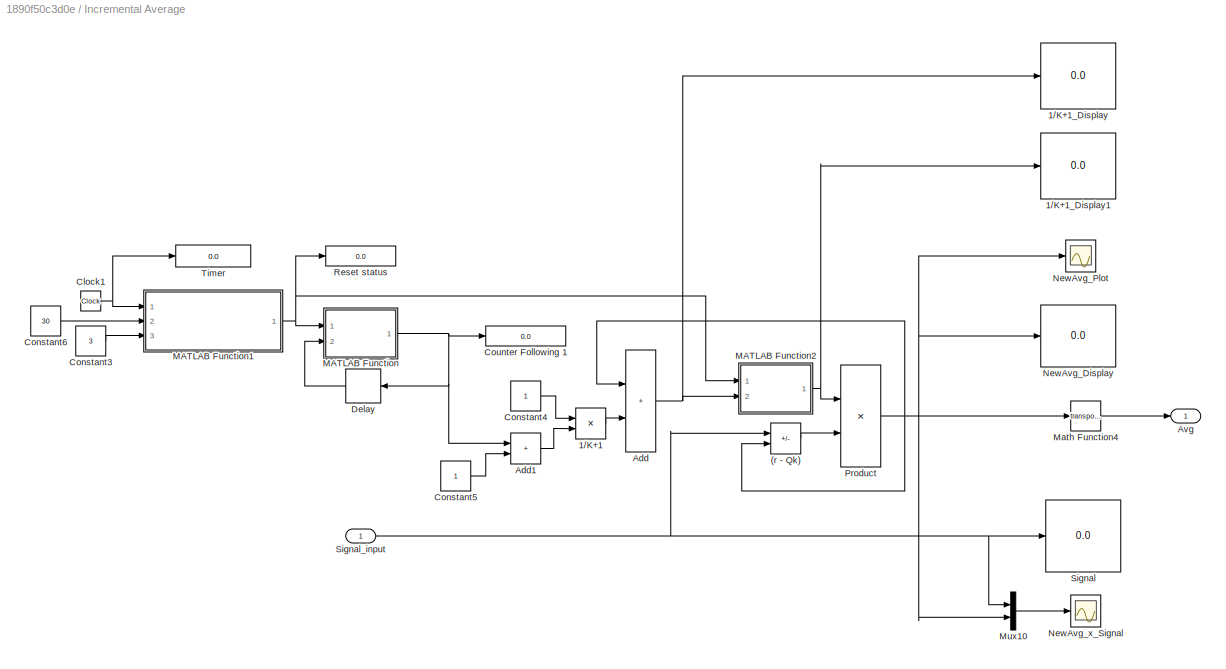
BLOCK [SubSystem] Incremental Average
  Commented = on
  Ports = [1, 1]
  RequestExecContextInheritance = off
BLOCK [Sum] Incremental Average/(r - Qk)
  IconShape = rectangular
  Inputs = +-
  Ports = [2, 1]
BLOCK [Product] Incremental Average/1//K+1
  Inputs = */
  Ports = [2, 1]
BLOCK [Display] Incremental Average/1//K+1_Display
  Decimation = 1
  Ports = [1]
BLOCK [Display] Incremental Average/1//K+1_Display1
  Decimation = 1
  Ports = [1]
BLOCK [Sum] Incremental Average/Add
  IconShape = rectangular
  Ports = [2, 1]
BLOCK [Sum] Incremental Average/Add1
  IconShape = rectangular
  Ports = [2, 1]
BLOCK [Outport] Incremental Average/Avg
BLOCK [Clock] Incremental Average/Clock1
BLOCK [Constant] Incremental Average/Constant3
  Value = 3
BLOCK [Constant] Incremental Average/Constant4
BLOCK [Constant] Incremental Average/Constant5
BLOCK [Constant] Incremental Average/Constant6
  Value = 30
BLOCK [Display] Incremental Average/Counter Following 1
  Decimation = 1
  Ports = [1]
BLOCK [Delay] Incremental Average/Delay
  DelayLength = 1
  InitialCondition = 0
  InputPortMap = u0
  Ports = [1, 1]
BLOCK [SubSystem] Incremental Average/MATLAB Function
  ErrorFcn = Stateflow.Translate.translate
  PermitHierarchicalResolution = ExplicitOnly
  Ports = [2, 1]
  RequestExecContextInheritance = off
  SFBlockType = MATLAB Function
  TreatAsAtomicUnit = on
BLOCK [Demux] Incremental Average/MATLAB Function/ Demux 
  Outputs = 1
  Ports = [1, 1]
BLOCK [S-Function] Incremental Average/MATLAB Function/ SFunction 
  EnableBusSupport = on
  FunctionName = sf_sfun
  PortCounts = [2 2]
  Ports = [2, 2]
  SFcnIsStateOwnerBlock = off
  SFunctionDeploymentMode = off
  Tag = Stateflow S-Function 1
BLOCK [Terminator] Incremental Average/MATLAB Function/ Terminator 
BLOCK [Inport] Incremental Average/MATLAB Function/reset
BLOCK [Outport] Incremental Average/MATLAB Function/y
BLOCK [Inport] Incremental Average/MATLAB Function/y_s
  Port = 2
BLOCK [SubSystem] Incremental Average/MATLAB Function1
  ErrorFcn = Stateflow.Translate.translate
  PermitHierarchicalResolution = ExplicitOnly
  Ports = [3, 1]
  RequestExecContextInheritance = off
  SFBlockType = MATLAB Function
  TreatAsAtomicUnit = on
BLOCK [Demux] Incremental Average/MATLAB Function1/ Demux 
  Outputs = 1
  Ports = [1, 1]
BLOCK [S-Function] Incremental Average/MATLAB Function1/ SFunction 
  EnableBusSupport = on
  FunctionName = sf_sfun
  PortCounts = [3 2]
  Ports = [3, 2]
  SFcnIsStateOwnerBlock = off
  SFunctionDeploymentMode = off
  Tag = Stateflow S-Function 2
BLOCK [Terminator] Incremental Average/MATLAB Function1/ Terminator 
BLOCK [Inport] Incremental Average/MATLAB Function1/Cycle_time
  Port = 2
BLOCK [Outport] Incremental Average/MATLAB Function1/Reset
BLOCK [Inport] Incremental Average/MATLAB Function1/Timer
BLOCK [Inport] Incremental Average/MATLAB Function1/periods
  Port = 3
BLOCK [SubSystem] Incremental Average/MATLAB Function2
  ErrorFcn = Stateflow.Translate.translate
  PermitHierarchicalResolution = ExplicitOnly
  Ports = [2, 1]
  RequestExecContextInheritance = off
  SFBlockType = MATLAB Function
  TreatAsAtomicUnit = on
BLOCK [Demux] Incremental Average/MATLAB Function2/ Demux 
  Outputs = 1
  Ports = [1, 1]
BLOCK [S-Function] Incremental Average/MATLAB Function2/ SFunction 
  EnableBusSupport = on
  FunctionName = sf_sfun
  PortCounts = [2 2]
  Ports = [2, 2]
  SFcnIsStateOwnerBlock = off
  SFunctionDeploymentMode = off
  Tag = Stateflow S-Function 10
BLOCK [Terminator] Incremental Average/MATLAB Function2/ Terminator 
BLOCK [Outport] Incremental Average/MATLAB Function2/Boot
BLOCK [Inport] Incremental Average/MATLAB Function2/K
  Port = 2
BLOCK [Inport] Incremental Average/MATLAB Function2/Reset
BLOCK [Math] Incremental Average/Math Function4
  Operator = transpose
  Ports = [1, 1]
BLOCK [Mux] Incremental Average/Mux10
  DisplayOption = bar
  Inputs = 2
  Ports = [2, 1]
BLOCK [Display] Incremental Average/NewAvg_Display
  Decimation = 1
  Ports = [1]
BLOCK [Scope] Incremental Average/NewAvg_Plot
  Floating = off
  NumInputPorts = 1
  Ports = [1]
  ScopeSpecificationString = Simulink.scopes.TimeScopeBlockCfg('CurrentConfiguration', extmgr.ConfigurationSet(extmgr.Configuration('Core','General UI',true,'FigureColor',[0 0 0]),extmgr.Configuration('Core','Source UI',true),extmgr.Configuration('Sources','WiredSimulink',true,'DataLoggingVariableName','ScopeData3'),extmgr.Configuration('Visuals','Time Domain',true,'SerializedDisplays',{struct('MinYLimReal','-0.02507','MaxYLi...<+2036ch>
BLOCK [Scope] Incremental Average/NewAvg_x_Signal
  Floating = off
  NumInputPorts = 1
  Ports = [1]
  ScopeSpecificationString = Simulink.scopes.TimeScopeBlockCfg('CurrentConfiguration', extmgr.ConfigurationSet(extmgr.Configuration('Core','General UI',true,'FigureColor',[0 0 0]),extmgr.Configuration('Core','Source UI',true),extmgr.Configuration('Sources','WiredSimulink',true,'DataLoggingVariableName','ScopeData1'),extmgr.Configuration('Visuals','Time Domain',true,'SerializedDisplays',{struct('MinYLimReal','-1.5','MaxYLimRea...<+2064ch>
BLOCK [Product] Incremental Average/Product
  Ports = [2, 1]
BLOCK [Display] Incremental Average/Reset status
  Decimation = 1
  Ports = [1]
BLOCK [Display] Incremental Average/Signal
  Decimation = 1
  Ports = [1]
BLOCK [Inport] Incremental Average/Signal_input
BLOCK [Display] Incremental Average/Timer
  Decimation = 1
  Ports = [1]
BLOCK [SubSystem] Incremental Average_Continuos 
  Commented = on
  Ports = [1, 1]
  RequestExecContextInheritance = off
BLOCK [Sum] Incremental Average_Continuos /(r - Qk)
  IconShape = rectangular
  Inputs = +-
  Ports = [2, 1]
BLOCK [Product] Incremental Average_Continuos /1//K+1
  Inputs = */
  Ports = [2, 1]
BLOCK [Sum] Incremental Average_Continuos /Add
  IconShape = rectangular
  Ports = [2, 1]
BLOCK [Outport] Incremental Average_Continuos /Avg
BLOCK [Constant] Incremental Average_Continuos /Constant4
BLOCK [Reference] Incremental Average_Continuos /Counter Free-Running2  REF=simulink/Sources/Counter
Free-Running
  Ports = [0, 1]
  SourceBlock = simulink/Sources/Counter\nFree-Running
  SourceProductBaseCode = SL
  SourceType = Counter Free-Running
BLOCK [Scope] Incremental Average_Continuos /DH
  Floating = off
  NumInputPorts = 1
  Ports = [1]
  ScopeSpecificationString = Simulink.scopes.TimeScopeBlockCfg('CurrentConfiguration', extmgr.ConfigurationSet(extmgr.Configuration('Core','General UI',true,'FigureColor',[0 0 0]),extmgr.Configuration('Core','Source UI',true),extmgr.Configuration('Sources','WiredSimulink',true,'DataLoggingVariableName','ScopeData7'),extmgr.Configuration('Visuals','Time Domain',true,'SerializedDisplays',{struct('MinYLimReal','-0.00021','MaxYLi...<+2083ch>
BLOCK [Scope] Incremental Average_Continuos /DQ
  Floating = off
  NumInputPorts = 1
  Ports = [1]
  ScopeSpecificationString = Simulink.scopes.TimeScopeBlockCfg('CurrentConfiguration', extmgr.ConfigurationSet(extmgr.Configuration('Core','General UI',true,'FigureColor',[0 0 0]),extmgr.Configuration('Core','Source UI',true),extmgr.Configuration('Sources','WiredSimulink',true,'DataLoggingVariableName','ScopeData6'),extmgr.Configuration('Visuals','Time Domain',true,'SerializedDisplays',{struct('MinYLimReal','-0.00021','MaxYLi...<+2083ch>
BLOCK [Demux] Incremental Average_Continuos /Demux
  Outputs = 2
  Ports = [1, 2]
BLOCK [Display] Incremental Average_Continuos /Difference Matrix11
  Decimation = 1
  Ports = [1]
BLOCK [Display] Incremental Average_Continuos /Difference Matrix12
  Decimation = 1
  Ports = [1]
BLOCK [Math] Incremental Average_Continuos /Math Function4
  Operator = transpose
  Ports = [1, 1]
BLOCK [Mux] Incremental Average_Continuos /Mux10
  DisplayOption = bar
  Inputs = 2
  Ports = [2, 1]
BLOCK [Scope] Incremental Average_Continuos /NewAvg
  Floating = off
  NumInputPorts = 1
  Ports = [1]
  ScopeSpecificationString = Simulink.scopes.TimeScopeBlockCfg('CurrentConfiguration', extmgr.ConfigurationSet(extmgr.Configuration('Core','General UI',true,'FigureColor',[0 0 0]),extmgr.Configuration('Core','Source UI',true),extmgr.Configuration('Sources','WiredSimulink',true,'DataLoggingVariableName','ScopeData1'),extmgr.Configuration('Visuals','Time Domain',true,'SerializedDisplays',{struct('MinYLimReal','-0.00229','MaxYLi...<+2144ch>
BLOCK [Display] Incremental Average_Continuos /NewAvg1
  Decimation = 1
  Ports = [1]
BLOCK [Scope] Incremental Average_Continuos /NewAvg2
  Floating = off
  NumInputPorts = 1
  Ports = [1]
  ScopeSpecificationString = Simulink.scopes.TimeScopeBlockCfg('CurrentConfiguration', extmgr.ConfigurationSet(extmgr.Configuration('Core','General UI',true,'FigureColor',[0 0 0]),extmgr.Configuration('Core','Source UI',true),extmgr.Configuration('Sources','WiredSimulink',true,'DataLoggingVariableName','ScopeData3'),extmgr.Configuration('Visuals','Time Domain',true,'SerializedDisplays',{struct('MinYLimReal','-0.00021','MaxYLi...<+2083ch>
BLOCK [Product] Incremental Average_Continuos /Product
  Ports = [2, 1]
BLOCK [Display] Incremental Average_Continuos /Signal
  Decimation = 1
  Ports = [1]
BLOCK [Inport] Incremental Average_Continuos /Signal_input
BLOCK [SubSystem] Incremental_Avg_Boot1
  Ports = [1, 1]
  RequestExecContextInheritance = off
BLOCK [Constant] Incremental_Avg_Boot1/Constant1
BLOCK [Constant] Incremental_Avg_Boot1/Constant3
  Value = 4
BLOCK [Constant] Incremental_Avg_Boot1/Constant6
  Value = 30
BLOCK [Outport] Incremental_Avg_Boot1/D 
BLOCK [Delay] Incremental_Avg_Boot1/Delay1
  DelayLength = 1
  InitialCondition = [0 0 0 0]
  InputPortMap = u0
  Ports = [1, 1]
BLOCK [Display] Incremental_Avg_Boot1/Display
  Decimation = 1
  Ports = [1]
BLOCK [Display] Incremental_Avg_Boot1/Display1
  Decimation = 1
  Ports = [1]
BLOCK [Sum] Incremental_Avg_Boot1/Qk + (R-Qk // K+1) 
  Inputs = |++
  NameLocation = top
  Ports = [2, 1]
BLOCK [Sum] Incremental_Avg_Boot1/R-Qk
  Inputs = |+-
  NameLocation = top
  Ports = [2, 1]
BLOCK [Product] Incremental_Avg_Boot1/R-Qk // K+1
  Inputs = */
  Ports = [2, 1]
BLOCK [SubSystem] Incremental_Avg_Boot1/Reboot
  Ports = [2, 2]
  RequestExecContextInheritance = off
BLOCK [Clock] Incremental_Avg_Boot1/Reboot/Clock1
BLOCK [Constant] Incremental_Avg_Boot1/Reboot/Constant1
BLOCK [Inport] Incremental_Avg_Boot1/Reboot/Cycle_time
BLOCK [Delay] Incremental_Avg_Boot1/Reboot/Delay1
  DelayLength = 1
  InputPortMap = u0
  Ports = [1, 1]
BLOCK [Product] Incremental_Avg_Boot1/Reboot/Divide
  Inputs = */
  Ports = [2, 1]
BLOCK [SubSystem] Incremental_Avg_Boot1/Reboot/MATLAB Function1
  ErrorFcn = Stateflow.Translate.translate
  PermitHierarchicalResolution = ExplicitOnly
  Ports = [3, 1]
  RequestExecContextInheritance = off
  SFBlockType = MATLAB Function
  TreatAsAtomicUnit = on
BLOCK [Demux] Incremental_Avg_Boot1/Reboot/MATLAB Function1/ Demux 
  Outputs = 1
  Ports = [1, 1]
BLOCK [S-Function] Incremental_Avg_Boot1/Reboot/MATLAB Function1/ SFunction 
  EnableBusSupport = on
  FunctionName = sf_sfun
  PortCounts = [3 2]
  Ports = [3, 2]
  SFcnIsStateOwnerBlock = off
  SFunctionDeploymentMode = off
  Tag = Stateflow S-Function 25
BLOCK [Terminator] Incremental_Avg_Boot1/Reboot/MATLAB Function1/ Terminator 
BLOCK [Inport] Incremental_Avg_Boot1/Reboot/MATLAB Function1/Cycle_time
  Port = 2
BLOCK [Outport] Incremental_Avg_Boot1/Reboot/MATLAB Function1/Reset
BLOCK [Inport] Incremental_Avg_Boot1/Reboot/MATLAB Function1/Timer
BLOCK [Inport] Incremental_Avg_Boot1/Reboot/MATLAB Function1/periods
  Port = 3
BLOCK [SubSystem] Incremental_Avg_Boot1/Reboot/MATLAB Function2
  ErrorFcn = Stateflow.Translate.translate
  PermitHierarchicalResolution = ExplicitOnly
  Ports = [2, 1]
  RequestExecContextInheritance = off
  SFBlockType = MATLAB Function
  TreatAsAtomicUnit = on
BLOCK [Demux] Incremental_Avg_Boot1/Reboot/MATLAB Function2/ Demux 
  Outputs = 1
  Ports = [1, 1]
BLOCK [S-Function] Incremental_Avg_Boot1/Reboot/MATLAB Function2/ SFunction 
  EnableBusSupport = on
  FunctionName = sf_sfun
  PortCounts = [2 2]
  Ports = [2, 2]
  SFcnIsStateOwnerBlock = off
  SFunctionDeploymentMode = off
  Tag = Stateflow S-Function 3
BLOCK [Terminator] Incremental_Avg_Boot1/Reboot/MATLAB Function2/ Terminator 
BLOCK [Inport] Incremental_Avg_Boot1/Reboot/MATLAB Function2/reset
BLOCK [Outport] Incremental_Avg_Boot1/Reboot/MATLAB Function2/y
BLOCK [Inport] Incremental_Avg_Boot1/Reboot/MATLAB Function2/y_s
  Port = 2
BLOCK [Outport] Incremental_Avg_Boot1/Reboot/Time
  Port = 2
BLOCK [Display] Incremental_Avg_Boot1/Reboot/Timer
  Decimation = 1
  Ports = [1]
BLOCK [Display] Incremental_Avg_Boot1/Reboot/Timer1
  Decimation = 1
  Ports = [1]
BLOCK [Inport] Incremental_Avg_Boot1/Reboot/periods
  Port = 2
BLOCK [Outport] Incremental_Avg_Boot1/Reboot/y
BLOCK [Sum] Incremental_Avg_Boot1/Sum2
  Inputs = |++
  Ports = [2, 1]
BLOCK [Display] Incremental_Avg_Boot1/Timer1
  Decimation = 1
  Format = long
  Ports = [1]
BLOCK [Display] Incremental_Avg_Boot1/Timer4
  Decimation = 1
  Format = long
  Ports = [1]
BLOCK [Math] Incremental_Avg_Boot1/Transpose2
  Operator = transpose
  Ports = [1, 1]
BLOCK [Inport] Incremental_Avg_Boot1/fNIRS
BLOCK [SubSystem] Incremental_Avg_withoutBoot
  Commented = on
  Ports = [1, 1]
  RequestExecContextInheritance = off
BLOCK [Constant] Incremental_Avg_withoutBoot/Constant1
BLOCK [Reference] Incremental_Avg_withoutBoot/Counter Free-Running2  REF=simulink/Sources/Counter
Free-Running
  Ports = [0, 1]
  SourceBlock = simulink/Sources/Counter\nFree-Running
  SourceProductBaseCode = SL
  SourceType = Counter Free-Running
BLOCK [Delay] Incremental_Avg_withoutBoot/Delay1
  DelayLength = 1
  InitialCondition = [0 0 0 0]
  InputPortMap = u0
  Ports = [1, 1]
BLOCK [Outport] Incremental_Avg_withoutBoot/Out1
BLOCK [Sum] Incremental_Avg_withoutBoot/Qk + (R-Qk // K+1) 
  Inputs = |++
  NameLocation = top
  Ports = [2, 1]
BLOCK [Sum] Incremental_Avg_withoutBoot/R-Qk
  Inputs = |+-
  NameLocation = top
  Ports = [2, 1]
BLOCK [Product] Incremental_Avg_withoutBoot/R-Qk // K+1
  Inputs = */
  Ports = [2, 1]
BLOCK [Sum] Incremental_Avg_withoutBoot/Sum2
  Inputs = |++
  Ports = [2, 1]
BLOCK [Display] Incremental_Avg_withoutBoot/Timer1
  Decimation = 1
  Format = long
  Ports = [1]
BLOCK [Display] Incremental_Avg_withoutBoot/Timer4
  Decimation = 1
  Format = long
  Ports = [1]
BLOCK [Math] Incremental_Avg_withoutBoot/Transpose2
  Operator = transpose
  Ports = [1, 1]
BLOCK [Inport] Incremental_Avg_withoutBoot/fNIRS
BLOCK [Reference] Inport  REF=simrfV2util1/Inport
  Ports = [1, 0, 0, 0, 0, 0, 1]
  SourceBlock = simrfV2util1/Inport
  SourceProductBaseCode = RB
  SourceType = Inport
BLOCK [Reference] Inport1  REF=simrfV2util1/Inport
  Commented = on
  Ports = [1, 0, 0, 0, 0, 0, 1]
  SourceBlock = simrfV2util1/Inport
  SourceProductBaseCode = RB
  SourceType = Inport
BLOCK [Display] Input Average 1
  Commented = on
  Decimation = 1
  Ports = [1]
BLOCK [Display] Input Average 2
  Commented = on
  Decimation = 1
  Ports = [1]
BLOCK [Display] Input Average 3
  Commented = on
  Decimation = 1
  Ports = [1]
BLOCK [Display] Input Average 4
  Commented = on
  Decimation = 1
  Ports = [1]
BLOCK [SubSystem] MATLAB Function
  Commented = on
  ErrorFcn = Stateflow.Translate.translate
  PermitHierarchicalResolution = ExplicitOnly
  Ports = [2, 1]
  RequestExecContextInheritance = off
  SFBlockType = MATLAB Function
  TreatAsAtomicUnit = on
BLOCK [Demux] MATLAB Function/ Demux 
  Outputs = 1
  Ports = [1, 1]
BLOCK [S-Function] MATLAB Function/ SFunction 
  EnableBusSupport = on
  FunctionName = sf_sfun
  PortCounts = [2 2]
  Ports = [2, 2]
  SFcnIsStateOwnerBlock = off
  SFunctionDeploymentMode = off
  Tag = Stateflow S-Function 8
BLOCK [Terminator] MATLAB Function/ Terminator 
BLOCK [Inport] MATLAB Function/F
BLOCK [Outport] MATLAB Function/phase
BLOCK [Inport] MATLAB Function/phase_L
  Port = 2
BLOCK [SubSystem] MATLAB Function1
  Commented = on
  ErrorFcn = Stateflow.Translate.translate
  PermitHierarchicalResolution = ExplicitOnly
  Ports = [1, 4]
  RequestExecContextInheritance = off
  SFBlockType = MATLAB Function
  TreatAsAtomicUnit = on
BLOCK [Demux] MATLAB Function1/ Demux 
  Outputs = 1
  Ports = [1, 1]
BLOCK [S-Function] MATLAB Function1/ SFunction 
  EnableBusSupport = on
  FunctionName = sf_sfun
  PortCounts = [1 5]
  Ports = [1, 5]
  SFcnIsStateOwnerBlock = off
  SFunctionDeploymentMode = off
  Tag = Stateflow S-Function 26
BLOCK [Terminator] MATLAB Function1/ Terminator 
BLOCK [Outport] MATLAB Function1/B_00
BLOCK [Outport] MATLAB Function1/B_01
  Port = 2
BLOCK [Outport] MATLAB Function1/B_10
  Port = 3
BLOCK [Outport] MATLAB Function1/B_11
  Port = 4
BLOCK [Inport] MATLAB Function1/Bobs
BLOCK [SubSystem] MATLAB Function2
  Commented = on
  ErrorFcn = Stateflow.Translate.translate
  PermitHierarchicalResolution = ExplicitOnly
  Ports = [1, 4]
  RequestExecContextInheritance = off
  SFBlockType = MATLAB Function
  TreatAsAtomicUnit = on
BLOCK [Demux] MATLAB Function2/ Demux 
  Outputs = 1
  Ports = [1, 1]
BLOCK [S-Function] MATLAB Function2/ SFunction 
  EnableBusSupport = on
  FunctionName = sf_sfun
  PortCounts = [1 5]
  Ports = [1, 5]
  SFcnIsStateOwnerBlock = off
  SFunctionDeploymentMode = off
  Tag = Stateflow S-Function 27
BLOCK [Terminator] MATLAB Function2/ Terminator 
BLOCK [Outport] MATLAB Function2/B_00
BLOCK [Outport] MATLAB Function2/B_01
  Port = 2
BLOCK [Outport] MATLAB Function2/B_10
  Port = 3
BLOCK [Outport] MATLAB Function2/B_11
  Port = 4
BLOCK [Inport] MATLAB Function2/Bobs
BLOCK [Mux] Mux1
  DisplayOption = bar
  Ports = [4, 1]
BLOCK [Mux] Mux2
  Commented = on
  DisplayOption = bar
  Ports = [4, 1]
BLOCK [Mux] Mux3
  Commented = on
  DisplayOption = bar
  Ports = [4, 1]
BLOCK [Mux] Mux4
  Commented = on
  DisplayOption = bar
  Ports = [4, 1]
BLOCK [Reference] Outport1  REF=simrfV2util1/Outport
  Ports = [0, 2, 0, 0, 0, 1]
  SourceBlock = simrfV2util1/Outport
  SourceProductBaseCode = RB
  SourceType = Outport
BLOCK [Reference] Outport2  REF=simrfV2util1/Outport
  Commented = on
  Ports = [0, 2, 0, 0, 0, 1]
  SourceBlock = simrfV2util1/Outport
  SourceProductBaseCode = RB
  SourceType = Outport
BLOCK [Constant] Period Time U1
  Commented = on
  Value = 30
BLOCK [Constant] Period Time U2
  Commented = on
  Value = 100
BLOCK [Scope] Scope
  Commented = on
  Floating = off
  NumInputPorts = 1
  Ports = [1]
  ScopeSpecificationString = Simulink.scopes.TimeScopeBlockCfg('CurrentConfiguration', extmgr.ConfigurationSet(extmgr.Configuration('Core','General UI',true),extmgr.Configuration('Core','Source UI',true),extmgr.Configuration('Sources','WiredSimulink',true,'DataLoggingVariableName','ScopeData2'),extmgr.Configuration('Visuals','Time Domain',true),extmgr.Configuration('Tools','Plot Navigation',true),extmgr.Configuration('Tools',...<+40ch>
BLOCK [Scope] Scope1
  Commented = on
  Floating = off
  NumInputPorts = 1
  Ports = [1]
  ScopeSpecificationString = Simulink.scopes.TimeScopeBlockCfg('CurrentConfiguration', extmgr.ConfigurationSet(extmgr.Configuration('Core','General UI',true),extmgr.Configuration('Core','Source UI',true),extmgr.Configuration('Sources','WiredSimulink',true,'DataLoggingVariableName','ScopeData3'),extmgr.Configuration('Visuals','Time Domain',true),extmgr.Configuration('Tools','Plot Navigation',true),extmgr.Configuration('Tools',...<+40ch>
BLOCK [Scope] Scope2
  Commented = on
  Floating = off
  NumInputPorts = 1
  Ports = [1]
  ScopeSpecificationString = Simulink.scopes.TimeScopeBlockCfg('CurrentConfiguration', extmgr.ConfigurationSet(extmgr.Configuration('Core','General UI',true),extmgr.Configuration('Core','Source UI',true),extmgr.Configuration('Sources','WiredSimulink',true,'DataLoggingVariableName','ScopeData1'),extmgr.Configuration('Visuals','Time Domain',true,'SerializedDisplays',{struct('MinYLimReal','-3.54567','MaxYLimReal','18.41522','YLa...<+1461ch>
BLOCK [Reference] Simulink Control Signal  REF=simulink/Sources/Repeating
Sequence
Stair
  Ports = [0, 1]
  SourceBlock = simulink/Sources/Repeating\nSequence\nStair
  SourceProductBaseCode = SL
  SourceType = Repeating Sequence Stair
BLOCK [Reference] Simulink Control Signal1  REF=simulink/Sources/Repeating
Sequence
Stair
  Commented = on
  Ports = [0, 1]
  SourceBlock = simulink/Sources/Repeating\nSequence\nStair
  SourceProductBaseCode = SL
  SourceType = Repeating Sequence Stair
BLOCK [Sin] Sine Wave1
  Amplitude = 1.2
  Commented = on
  Ports = [0, 1]
  SampleTime = 0
BLOCK [Sin] Sine Wave2
  Commented = on
  Frequency = 1.4
  Ports = [0, 1]
  SampleTime = 0
BLOCK [Sin] Sine Wave3
  Commented = on
  Frequency = 1.4
  Ports = [0, 1]
  SampleTime = 0
BLOCK [Sin] Sine Wave4
  Amplitude = 1.2
  Ports = [0, 1]
  SampleTime = 0
BLOCK [Sin] Sine Wave5
  Frequency = 1.4
  Ports = [0, 1]
  SampleTime = 0
BLOCK [Sin] Sine Wave6
  Frequency = 1.4
  Ports = [0, 1]
  SampleTime = 0
BLOCK [Scope] Stimulus
  Commented = on
  Floating = off
  NumInputPorts = 1
  Ports = [1]
  ScopeSpecificationString = Simulink.scopes.TimeScopeBlockCfg('CurrentConfiguration', extmgr.ConfigurationSet(extmgr.Configuration('Core','General UI',true,'FigureColor',[0 0 0]),extmgr.Configuration('Core','Source UI',true),extmgr.Configuration('Sources','WiredSimulink',true,'DataLoggingVariableName','ScopeData1'),extmgr.Configuration('Visuals','Time Domain',true,'SerializedDisplays',{struct('MinYLimReal','-0.125','MaxYLimR...<+1682ch>
BLOCK [Terminator] Terminator
BLOCK [Terminator] Terminator1
  Commented = on
BLOCK [Math] Transpose
  Operator = transpose
  Ports = [1, 1]
BLOCK [Math] Transpose1
  Commented = on
  Operator = transpose
  Ports = [1, 1]
BLOCK [Reference] Variable Phase Shift  REF=simrfV2elements/Variable
Phase Shift
  Ports = [1, 0, 0, 0, 0, 1, 1]
  SourceBlock = simrfV2elements/Variable\nPhase Shift
  SourceProductBaseCode = RB
  SourceType = Variable Phase
BLOCK [Reference] Variable Phase Shift1  REF=simrfV2elements/Variable
Phase Shift
  Commented = on
  Ports = [1, 0, 0, 0, 0, 1, 1]
  SourceBlock = simrfV2elements/Variable\nPhase Shift
  SourceProductBaseCode = RB
  SourceType = Variable Phase
BLOCK [SubSystem] Variable Stimulus
  Commented = on
  Ports = [2, 1]
  RequestExecContextInheritance = off
BLOCK [Constant] Variable Stimulus/Duty-Cycle-U1
  OutMax = [0.8]
  OutMin = [0]
  Value = 0.16667
BLOCK [Constant] Variable Stimulus/Duty-Cycle-U2
  OutMax = [0.8]
  OutMin = [0]
  Value = 0.16667
BLOCK [Inport] Variable Stimulus/In1
BLOCK [Inport] Variable Stimulus/In2
  Port = 2
BLOCK [Mux] Variable Stimulus/Mux
  DisplayOption = bar
  Inputs = 2
  Ports = [2, 1]
BLOCK [RandomNumber] Variable Stimulus/Random Number
  SampleTime = 0.03
  Variance = 0.1
BLOCK [Scope] Variable Stimulus/Stimulus1
  Floating = off
  NumInputPorts = 1
  Ports = [1]
  ScopeSpecificationString = Simulink.scopes.TimeScopeBlockCfg('CurrentConfiguration', extmgr.ConfigurationSet(extmgr.Configuration('Core','General UI',true,'FigureColor',[0 0 0]),extmgr.Configuration('Core','Source UI',true),extmgr.Configuration('Sources','WiredSimulink',true,'DataLoggingVariableName','ScopeData1'),extmgr.Configuration('Visuals','Time Domain',true,'SerializedDisplays',{struct('MinYLimReal','-1.2445','MaxYLim...<+1686ch>
BLOCK [Outport] Variable Stimulus/U
BLOCK [VariablePulseGenerator] Variable Stimulus/Variable Pulse Generator1
  RunAtFixedTimeIntervals = on
  SampleTime = 1/10.4
BLOCK [VariablePulseGenerator] Variable Stimulus/Variable Pulse Generator2
  RunAtFixedTimeIntervals = on
  SampleTime = 1/10.4
BLOCK [Scope] Y1
  Commented = on
  Floating = off
  NumInputPorts = 1
  Ports = [1]
  ScopeSpecificationString = Simulink.scopes.TimeScopeBlockCfg('CurrentConfiguration', extmgr.ConfigurationSet(extmgr.Configuration('Core','General UI',true,'FigureColor',[1 1 1]),extmgr.Configuration('Core','Source UI',true),extmgr.Configuration('Sources','WiredSimulink',true,'DataLoggingVariableName','ScopeData3'),extmgr.Configuration('Visuals','Time Domain',true,'SerializedDisplays',{struct('MinYLimReal','-0.125','MaxYLimR...<+2197ch>
BLOCK [Scope] Y2
  Commented = on
  Floating = off
  NumInputPorts = 1
  Ports = [1]
  ScopeSpecificationString = Simulink.scopes.TimeScopeBlockCfg('CurrentConfiguration', extmgr.ConfigurationSet(extmgr.Configuration('Core','General UI',true,'FigureColor',[1 1 1]),extmgr.Configuration('Core','Source UI',true),extmgr.Configuration('Sources','WiredSimulink',true,'DataLoggingVariableName','ScopeData3'),extmgr.Configuration('Visuals','Time Domain',true,'SerializedDisplays',{struct('MinYLimReal','0.51782','MaxYLim...<+2206ch>
BLOCK [SubSystem] getConnectivity_Validation1
  Commented = on
  ErrorFcn = Stateflow.Translate.translate
  PermitHierarchicalResolution = ExplicitOnly
  Ports = [1, 2]
  RequestExecContextInheritance = off
  SFBlockType = MATLAB Function
  SystemSampleTime = 0
  TreatAsAtomicUnit = on
BLOCK [Demux] getConnectivity_Validation1/ Demux 
  Outputs = 1
  Ports = [1, 1]
BLOCK [S-Function] getConnectivity_Validation1/ SFunction 
  EnableBusSupport = on
  FunctionName = sf_sfun
  PortCounts = [1 3]
  Ports = [1, 3]
  SFcnIsStateOwnerBlock = off
  SFunctionDeploymentMode = off
  Tag = Stateflow S-Function 7
BLOCK [Terminator] getConnectivity_Validation1/ Terminator 
BLOCK [Outport] getConnectivity_Validation1/Bobs
BLOCK [Inport] getConnectivity_Validation1/D 
BLOCK [Outport] getConnectivity_Validation1/DQ
  Port = 2
BLOCK [SubSystem] getConnectivity_Validation2
  Commented = on
  ErrorFcn = Stateflow.Translate.translate
  PermitHierarchicalResolution = ExplicitOnly
  Ports = [1, 2]
  RequestExecContextInheritance = off
  SFBlockType = MATLAB Function
  SystemSampleTime = 0
  TreatAsAtomicUnit = on
BLOCK [Demux] getConnectivity_Validation2/ Demux 
  Outputs = 1
  Ports = [1, 1]
BLOCK [S-Function] getConnectivity_Validation2/ SFunction 
  EnableBusSupport = on
  FunctionName = sf_sfun
  PortCounts = [1 3]
  Ports = [1, 3]
  SFcnIsStateOwnerBlock = off
  SFunctionDeploymentMode = off
  Tag = Stateflow S-Function 6
BLOCK [Terminator] getConnectivity_Validation2/ Terminator 
BLOCK [Outport] getConnectivity_Validation2/Bobs
BLOCK [Inport] getConnectivity_Validation2/D 
BLOCK [Outport] getConnectivity_Validation2/DQ
  Port = 2
BLOCK [SubSystem] getConnectivity_Validation3
  ErrorFcn = Stateflow.Translate.translate
  PermitHierarchicalResolution = ExplicitOnly
  Ports = [1, 2]
  RequestExecContextInheritance = off
  SFBlockType = MATLAB Function
  SystemSampleTime = 0
  TreatAsAtomicUnit = on
BLOCK [Demux] getConnectivity_Validation3/ Demux 
  Outputs = 1
  Ports = [1, 1]
BLOCK [S-Function] getConnectivity_Validation3/ SFunction 
  EnableBusSupport = on
  FunctionName = sf_sfun
  PortCounts = [1 3]
  Ports = [1, 3]
  SFcnIsStateOwnerBlock = off
  SFunctionDeploymentMode = off
  Tag = Stateflow S-Function 4
BLOCK [Terminator] getConnectivity_Validation3/ Terminator 
BLOCK [Outport] getConnectivity_Validation3/Bobs
BLOCK [Inport] getConnectivity_Validation3/D 
BLOCK [Outport] getConnectivity_Validation3/DQ
  Port = 2
BLOCK [SubSystem] getConnectivity_Validation4
  ErrorFcn = Stateflow.Translate.translate
  PermitHierarchicalResolution = ExplicitOnly
  Ports = [1, 2]
  RequestExecContextInheritance = off
  SFBlockType = MATLAB Function
  SystemSampleTime = 0
  TreatAsAtomicUnit = on
BLOCK [Demux] getConnectivity_Validation4/ Demux 
  Outputs = 1
  Ports = [1, 1]
BLOCK [S-Function] getConnectivity_Validation4/ SFunction 
  EnableBusSupport = on
  FunctionName = sf_sfun
  PortCounts = [1 3]
  Ports = [1, 3]
  SFcnIsStateOwnerBlock = off
  SFunctionDeploymentMode = off
  Tag = Stateflow S-Function 5
BLOCK [Terminator] getConnectivity_Validation4/ Terminator 
BLOCK [Outport] getConnectivity_Validation4/Bobs
BLOCK [Inport] getConnectivity_Validation4/D 
BLOCK [Outport] getConnectivity_Validation4/DQ
  Port = 2
LINE Constant:1 -> MATLAB Function:1
LINE Delay:1 -> MATLAB Function:2
NET Human Agent/Clock:1 -> Human Agent/Pressure Generator:2, Human Agent/SENSOR:2
LINE Human Agent/DH and DQ/Constant1:1 -> Human Agent/DH and DQ/Delta-P:2
LINE Human Agent/DH and DQ/Constant2:1 -> Human Agent/DH and DQ/Product:1
LINE Human Agent/DH and DQ/Constant3:1 -> Human Agent/DH and DQ/Product1:1
LINE Human Agent/DH and DQ/Constant:1 -> Human Agent/DH and DQ/Delta-Q:2
NET Human Agent/DH and DQ/Delta-H:1 -> Human Agent/DH and DQ/D-H:1, Human Agent/DH and DQ/DH:1, Human Agent/DH and DQ/Demux1:1
LINE Human Agent/DH and DQ/Delta-P:1 -> Human Agent/DH and DQ/Product:2
LINE Human Agent/DH and DQ/Delta-Q:1 -> Human Agent/DH and DQ/Product1:2
NET Human Agent/DH and DQ/Demux1:1 -> Human Agent/DH and DQ/Mux2:1, Human Agent/DH and DQ/Mux:2
NET Human Agent/DH and DQ/Demux1:2 -> Human Agent/DH and DQ/Mux1:2, Human Agent/DH and DQ/Mux2:2
NET Human Agent/DH and DQ/Demux2:1 -> Human Agent/DH and DQ/Mux2:3, Human Agent/DH and DQ/Mux:3
NET Human Agent/DH and DQ/Demux2:2 -> Human Agent/DH and DQ/Mux1:3, Human Agent/DH and DQ/Mux2:4
LINE Human Agent/DH and DQ/Demux:1 -> Human Agent/DH and DQ/Mux:1
LINE Human Agent/DH and DQ/Demux:2 -> Human Agent/DH and DQ/Mux1:1
LINE Human Agent/DH and DQ/Mux1:1 -> Human Agent/DH and DQ/SMA:1
LINE Human Agent/DH and DQ/Mux2:1 -> Human Agent/DH and DQ/Hemo:1
LINE Human Agent/DH and DQ/Mux:1 -> Human Agent/DH and DQ/M1:1
NET Human Agent/DH and DQ/Product1:1 -> Human Agent/DH and DQ/D-Q:1, Human Agent/DH and DQ/DQ:1, Human Agent/DH and DQ/Delta-H:2, Human Agent/DH and DQ/Demux2:1
NET Human Agent/DH and DQ/Product:1 -> Human Agent/DH and DQ/D-P:1, Human Agent/DH and DQ/Delta-H:1, Human Agent/DH and DQ/Demux:1
LINE Human Agent/DH and DQ/pj:1 -> Human Agent/DH and DQ/Delta-P:1
LINE Human Agent/DH and DQ/qj:1 -> Human Agent/DH and DQ/Delta-Q:1
LINE Human Agent/DH and DQ:1 -> Human Agent/Optics_:2
LINE Human Agent/DH and DQ:2 -> Human Agent/Optics_:3
LINE Human Agent/DH and DQ:3 -> Human Agent/Hemo:1
LINE Human Agent/Delay2:1 -> Human Agent/SENSOR:3
NET Human Agent/Hemodynamics/Efp:1 -> Human Agent/Hemodynamics/Efp_1:1, Human Agent/Hemodynamics/Rate-Deoxy-Hemo:4
NET Human Agent/Hemodynamics/Rate Blood Volume/Add1:1 -> Human Agent/Hemodynamics/Rate Blood Volume/Fjout:1, Human Agent/Hemodynamics/Rate Blood Volume/Scope:1
LINE Human Agent/Hemodynamics/Rate Blood Volume/Add:1 -> Human Agent/Hemodynamics/Rate Blood Volume/Divide:1
NET Human Agent/Hemodynamics/Rate Blood Volume/Divide:1 -> Human Agent/Hemodynamics/Rate Blood Volume/Integrator:1, Human Agent/Hemodynamics/Rate Blood Volume/Product:2
LINE Human Agent/Hemodynamics/Rate Blood Volume/Fjin:1 -> Human Agent/Hemodynamics/Rate Blood Volume/Add:1
NET Human Agent/Hemodynamics/Rate Blood Volume/Fv_s:1 -> Human Agent/Hemodynamics/Rate Blood Volume/Add1:1, Human Agent/Hemodynamics/Rate Blood Volume/Add:2
NET Human Agent/Hemodynamics/Rate Blood Volume/Integrator:1 -> Human Agent/Hemodynamics/Rate Blood Volume/Fv_s:1, Human Agent/Hemodynamics/Rate Blood Volume/Vj//Tjv:1, Human Agent/Hemodynamics/Rate Blood Volume/Vj:1
LINE Human Agent/Hemodynamics/Rate Blood Volume/Product:1 -> Human Agent/Hemodynamics/Rate Blood Volume/Add1:2
LINE Human Agent/Hemodynamics/Rate Blood Volume/Tjv:1 -> Human Agent/Hemodynamics/Rate Blood Volume/Product:1
LINE Human Agent/Hemodynamics/Rate Blood Volume/Vj//Tjv:1 -> Human Agent/Hemodynamics/Rate Blood Volume/Divide:2
NET Human Agent/Hemodynamics/Rate Blood Volume:1 -> Human Agent/Hemodynamics/Rate-Deoxy-Hemo:2, Human Agent/Hemodynamics/Rate-Total-Hemo:1, Human Agent/Hemodynamics/Vj:1
NET Human Agent/Hemodynamics/Rate Blood Volume:2 -> Human Agent/Hemodynamics/Fjout:1, Human Agent/Hemodynamics/Rate-Deoxy-Hemo:3, Human Agent/Hemodynamics/Rate-Total-Hemo:2
LINE Human Agent/Hemodynamics/Rate-Deoxy-Hemo/Divide:1 -> Human Agent/Hemodynamics/Rate-Deoxy-Hemo/Product1:2
LINE Human Agent/Hemodynamics/Rate-Deoxy-Hemo/Efp:1 -> Human Agent/Hemodynamics/Rate-Deoxy-Hemo/Product:2
LINE Human Agent/Hemodynamics/Rate-Deoxy-Hemo/Fjin:1 -> Human Agent/Hemodynamics/Rate-Deoxy-Hemo/Product:1
LINE Human Agent/Hemodynamics/Rate-Deoxy-Hemo/Fjout:1 -> Human Agent/Hemodynamics/Rate-Deoxy-Hemo/Product1:1
NET Human Agent/Hemodynamics/Rate-Deoxy-Hemo/Integrator:1 -> Human Agent/Hemodynamics/Rate-Deoxy-Hemo/Divide:1, Human Agent/Hemodynamics/Rate-Deoxy-Hemo/qj:1, Human Agent/Hemodynamics/Rate-Deoxy-Hemo/qj_scope:1
LINE Human Agent/Hemodynamics/Rate-Deoxy-Hemo/Product1:1 -> Human Agent/Hemodynamics/Rate-Deoxy-Hemo/Subtract:2
LINE Human Agent/Hemodynamics/Rate-Deoxy-Hemo/Product:1 -> Human Agent/Hemodynamics/Rate-Deoxy-Hemo/Subtract:1
LINE Human Agent/Hemodynamics/Rate-Deoxy-Hemo/Subtract:1 -> Human Agent/Hemodynamics/Rate-Deoxy-Hemo/Integrator:1
LINE Human Agent/Hemodynamics/Rate-Deoxy-Hemo/Vj:1 -> Human Agent/Hemodynamics/Rate-Deoxy-Hemo/Divide:2
LINE Human Agent/Hemodynamics/Rate-Deoxy-Hemo:1 -> Human Agent/Hemodynamics/qj:1
LINE Human Agent/Hemodynamics/Rate-Total-Hemo/Divide:1 -> Human Agent/Hemodynamics/Rate-Total-Hemo/Product:2
LINE Human Agent/Hemodynamics/Rate-Total-Hemo/Fjin:1 -> Human Agent/Hemodynamics/Rate-Total-Hemo/Subtract:1
LINE Human Agent/Hemodynamics/Rate-Total-Hemo/Fjout:1 -> Human Agent/Hemodynamics/Rate-Total-Hemo/Subtract:2
NET Human Agent/Hemodynamics/Rate-Total-Hemo/Integrator:1 -> Human Agent/Hemodynamics/Rate-Total-Hemo/Divide:1, Human Agent/Hemodynamics/Rate-Total-Hemo/Pj:1, Human Agent/Hemodynamics/Rate-Total-Hemo/pj:1
LINE Human Agent/Hemodynamics/Rate-Total-Hemo/Product:1 -> Human Agent/Hemodynamics/Rate-Total-Hemo/Integrator:1
LINE Human Agent/Hemodynamics/Rate-Total-Hemo/Subtract:1 -> Human Agent/Hemodynamics/Rate-Total-Hemo/Product:1
LINE Human Agent/Hemodynamics/Rate-Total-Hemo/Vj:1 -> Human Agent/Hemodynamics/Rate-Total-Hemo/Divide:2
LINE Human Agent/Hemodynamics/Rate-Total-Hemo:1 -> Human Agent/Hemodynamics/Pj:1
LINE Human Agent/Hemodynamics/Vasodilatory Signal/Add1:1 -> Human Agent/Hemodynamics/Vasodilatory Signal/Yj:1
LINE Human Agent/Hemodynamics/Vasodilatory Signal/Add:1 -> Human Agent/Hemodynamics/Vasodilatory Signal/Integrator:1
LINE Human Agent/Hemodynamics/Vasodilatory Signal/Constant1:1 -> Human Agent/Hemodynamics/Vasodilatory Signal/Add1:2
NET Human Agent/Hemodynamics/Vasodilatory Signal/Integrator1:1 -> Human Agent/Hemodynamics/Vasodilatory Signal/Add1:1, Human Agent/Hemodynamics/Vasodilatory Signal/Fjin:1, Human Agent/Hemodynamics/Vasodilatory Signal/Scope1:1
NET Human Agent/Hemodynamics/Vasodilatory Signal/Integrator:1 -> Human Agent/Hemodynamics/Vasodilatory Signal/Integrator1:1, Human Agent/Hemodynamics/Vasodilatory Signal/K:1, Human Agent/Hemodynamics/Vasodilatory Signal/Sj:1
LINE Human Agent/Hemodynamics/Vasodilatory Signal/K:1 -> Human Agent/Hemodynamics/Vasodilatory Signal/Add:2
LINE Human Agent/Hemodynamics/Vasodilatory Signal/Yj:1 -> Human Agent/Hemodynamics/Vasodilatory Signal/Add:3
LINE Human Agent/Hemodynamics/Vasodilatory Signal/Zj:1 -> Human Agent/Hemodynamics/Vasodilatory Signal/Add:1
LINE Human Agent/Hemodynamics/Vasodilatory Signal:1 -> Human Agent/Hemodynamics/Sj:1
NET Human Agent/Hemodynamics/Vasodilatory Signal:2 -> Human Agent/Hemodynamics/Efp:1, Human Agent/Hemodynamics/Fjin_1:1, Human Agent/Hemodynamics/Rate Blood Volume:1, Human Agent/Hemodynamics/Rate-Deoxy-Hemo:1, Human Agent/Hemodynamics/Rate-Total-Hemo:3
NET Human Agent/Hemodynamics/Zj:1 -> Human Agent/Hemodynamics/Vasodilatory Signal:1, Human Agent/Hemodynamics/Z:1
LINE Human Agent/Hemodynamics:1 -> Human Agent/DH and DQ:1
LINE Human Agent/Hemodynamics:2 -> Human Agent/DH and DQ:2
LINE Human Agent/Neurodynamics1/C:1 -> Human Agent/Neurodynamics1/Sum:1
LINE Human Agent/Neurodynamics1/Clock:1 -> Human Agent/Neurodynamics1/MATLAB Function:1
LINE Human Agent/Neurodynamics1/Constant1:1 -> Human Agent/Neurodynamics1/MATLAB Function:3
LINE Human Agent/Neurodynamics1/Constant:1 -> Human Agent/Neurodynamics1/MATLAB Function:2
NET Human Agent/Neurodynamics1/Integrator:1 -> Human Agent/Neurodynamics1/Jt:1, Human Agent/Neurodynamics1/Z:1
LINE Human Agent/Neurodynamics1/Jt:1 -> Human Agent/Neurodynamics1/Sum:2
LINE Human Agent/Neurodynamics1/MATLAB Function:1 -> Human Agent/Neurodynamics1/Jt:3
LINE Human Agent/Neurodynamics1/MATLAB Function:2 -> Human Agent/Neurodynamics1/Display:1
LINE Human Agent/Neurodynamics1/Sum:1 -> Human Agent/Neurodynamics1/Integrator:1
NET Human Agent/Neurodynamics1/U:1 -> Human Agent/Neurodynamics1/C:1, Human Agent/Neurodynamics1/Jt:2
NET Human Agent/Neurodynamics1:1 -> Human Agent/Hemodynamics:1, Human Agent/Pressure Generator:1, Human Agent/Z:1
NET Human Agent/Neurodynamics_dynamic/B_Definition:1 -> Human Agent/Neurodynamics_dynamic/Broker1:1, Human Agent/Neurodynamics_dynamic/Jt_Dynamic:3
LINE Human Agent/Neurodynamics_dynamic/B_Definition:2 -> Human Agent/Neurodynamics_dynamic/Display7:1
LINE Human Agent/Neurodynamics_dynamic/Broker1:1 -> Human Agent/Neurodynamics_dynamic/ActualB_1:1
LINE Human Agent/Neurodynamics_dynamic/Broker1:2 -> Human Agent/Neurodynamics_dynamic/ActualB_2:1
LINE Human Agent/Neurodynamics_dynamic/Broker:1 -> Human Agent/Neurodynamics_dynamic/Last_B1:1
LINE Human Agent/Neurodynamics_dynamic/Broker:2 -> Human Agent/Neurodynamics_dynamic/LastB2:1
LINE Human Agent/Neurodynamics_dynamic/C1:1 -> Human Agent/Neurodynamics_dynamic/Sum:1
LINE Human Agent/Neurodynamics_dynamic/Delay:1 -> Human Agent/Neurodynamics_dynamic/B_Definition:2
NET Human Agent/Neurodynamics_dynamic/Integrator:1 -> Human Agent/Neurodynamics_dynamic/Jt_Dynamic:1, Human Agent/Neurodynamics_dynamic/Z:1
NET Human Agent/Neurodynamics_dynamic/Jt_Dynamic:1 -> Human Agent/Neurodynamics_dynamic/Display5:1, Human Agent/Neurodynamics_dynamic/Sum:2
NET Human Agent/Neurodynamics_dynamic/Jt_Dynamic:2 -> Human Agent/Neurodynamics_dynamic/Broker:1, Human Agent/Neurodynamics_dynamic/Delay:1
NET Human Agent/Neurodynamics_dynamic/MATLAB Function1:1 -> Human Agent/Neurodynamics_dynamic/B_Definition:1, Human Agent/Neurodynamics_dynamic/C1:1, Human Agent/Neurodynamics_dynamic/Jt_Dynamic:2
LINE Human Agent/Neurodynamics_dynamic/MATLAB Function:1 -> Human Agent/Neurodynamics_dynamic/Integrator:1
LINE Human Agent/Neurodynamics_dynamic/Sum:1 -> Human Agent/Neurodynamics_dynamic/MATLAB Function:1
LINE Human Agent/Neurodynamics_dynamic/U:1 -> Human Agent/Neurodynamics_dynamic/MATLAB Function1:1
LINE Human Agent/Optics_:1 -> Human Agent/fNIRS:1
LINE Human Agent/Pressure Generator:1 -> Human Agent/SENSOR:1
LINE Human Agent/SENSOR:1 -> Human Agent/Pobs:1
LINE Human Agent/SENSOR:2 -> Human Agent/Delay2:1
LINE Human Agent/Stimulus:1 -> Human Agent/Neurodynamics1:1
LINE Human Agent/nRegions:1 -> Human Agent/Optics_:1
LINE Human Agent:1 -> Scope1:1
LINE Human Agent:2 -> Scope:1
LINE Human Agent:3 -> Scope2:1
LINE Incremental Average/(r - Qk):1 -> Incremental Average/Product:2
LINE Incremental Average/1//K+1:1 -> Incremental Average/Add:2
LINE Incremental Average/Add1:1 -> Incremental Average/1//K+1:2
NET Incremental Average/Add:1 -> Incremental Average/1//K+1_Display:1, Incremental Average/MATLAB Function2:2
NET Incremental Average/Clock1:1 -> Incremental Average/MATLAB Function1:1, Incremental Average/Timer:1
LINE Incremental Average/Constant3:1 -> Incremental Average/MATLAB Function1:3
LINE Incremental Average/Constant4:1 -> Incremental Average/1//K+1:1
LINE Incremental Average/Constant5:1 -> Incremental Average/Add1:2
LINE Incremental Average/Constant6:1 -> Incremental Average/MATLAB Function1:2
LINE Incremental Average/Delay:1 -> Incremental Average/MATLAB Function:2
NET Incremental Average/MATLAB Function1:1 -> Incremental Average/MATLAB Function2:1, Incremental Average/MATLAB Function:1, Incremental Average/Reset status:1
NET Incremental Average/MATLAB Function2:1 -> Incremental Average/1//K+1_Display1:1, Incremental Average/Product:1
NET Incremental Average/MATLAB Function:1 -> Incremental Average/Add1:1, Incremental Average/Counter Following 1:1, Incremental Average/Delay:1
LINE Incremental Average/Math Function4:1 -> Incremental Average/Avg:1
LINE Incremental Average/Mux10:1 -> Incremental Average/NewAvg_x_Signal:1
NET Incremental Average/Product:1 -> Incremental Average/(r - Qk):2, Incremental Average/Add:1, Incremental Average/Math Function4:1, Incremental Average/Mux10:2, Incremental Average/NewAvg_Display:1, Incremental Average/NewAvg_Plot:1
NET Incremental Average/Signal_input:1 -> Incremental Average/(r - Qk):1, Incremental Average/Mux10:1, Incremental Average/Signal:1
LINE Incremental Average_Continuos /(r - Qk):1 -> Incremental Average_Continuos /Product:2
NET Incremental Average_Continuos /1//K+1:1 -> Incremental Average_Continuos /Add:2, Incremental Average_Continuos /Difference Matrix11:1
LINE Incremental Average_Continuos /Add:1 -> Incremental Average_Continuos /Product:1
LINE Incremental Average_Continuos /Constant4:1 -> Incremental Average_Continuos /1//K+1:1
NET Incremental Average_Continuos /Counter Free-Running2:1 -> Incremental Average_Continuos /1//K+1:2, Incremental Average_Continuos /Difference Matrix12:1
LINE Incremental Average_Continuos /Demux:1 -> Incremental Average_Continuos /DH:1
LINE Incremental Average_Continuos /Demux:2 -> Incremental Average_Continuos /DQ:1
NET Incremental Average_Continuos /Math Function4:1 -> Incremental Average_Continuos /Avg:1, Incremental Average_Continuos /Demux:1
LINE Incremental Average_Continuos /Mux10:1 -> Incremental Average_Continuos /NewAvg:1
NET Incremental Average_Continuos /Product:1 -> Incremental Average_Continuos /(r - Qk):2, Incremental Average_Continuos /Add:1, Incremental Average_Continuos /Math Function4:1, Incremental Average_Continuos /Mux10:1, Incremental Average_Continuos /NewAvg1:1, Incremental Average_Continuos /NewAvg2:1
NET Incremental Average_Continuos /Signal_input:1 -> Incremental Average_Continuos /(r - Qk):1, Incremental Average_Continuos /Mux10:2, Incremental Average_Continuos /Signal:1
LINE Incremental_Avg_Boot1/Constant1:1 -> Incremental_Avg_Boot1/Sum2:2
LINE Incremental_Avg_Boot1/Constant3:1 -> Incremental_Avg_Boot1/Reboot:2
LINE Incremental_Avg_Boot1/Constant6:1 -> Incremental_Avg_Boot1/Reboot:1
NET Incremental_Avg_Boot1/Delay1:1 -> Incremental_Avg_Boot1/Qk + (R-Qk // K+1) :2, Incremental_Avg_Boot1/R-Qk:2
NET Incremental_Avg_Boot1/Qk + (R-Qk // K+1) :1 -> Incremental_Avg_Boot1/D :1, Incremental_Avg_Boot1/Delay1:1
LINE Incremental_Avg_Boot1/R-Qk // K+1:1 -> Incremental_Avg_Boot1/Qk + (R-Qk // K+1) :1
LINE Incremental_Avg_Boot1/R-Qk:1 -> Incremental_Avg_Boot1/R-Qk // K+1:1
NET Incremental_Avg_Boot1/Reboot/Clock1:1 -> Incremental_Avg_Boot1/Reboot/MATLAB Function1:1, Incremental_Avg_Boot1/Reboot/Timer:1
LINE Incremental_Avg_Boot1/Reboot/Constant1:1 -> Incremental_Avg_Boot1/Reboot/Divide:2
LINE Incremental_Avg_Boot1/Reboot/Cycle_time:1 -> Incremental_Avg_Boot1/Reboot/MATLAB Function1:2
LINE Incremental_Avg_Boot1/Reboot/Delay1:1 -> Incremental_Avg_Boot1/Reboot/MATLAB Function2:2
LINE Incremental_Avg_Boot1/Reboot/Divide:1 -> Incremental_Avg_Boot1/Reboot/Time:1
NET Incremental_Avg_Boot1/Reboot/MATLAB Function1:1 -> Incremental_Avg_Boot1/Reboot/MATLAB Function2:1, Incremental_Avg_Boot1/Reboot/Timer1:1
NET Incremental_Avg_Boot1/Reboot/MATLAB Function2:1 -> Incremental_Avg_Boot1/Reboot/Delay1:1, Incremental_Avg_Boot1/Reboot/Divide:1, Incremental_Avg_Boot1/Reboot/y:1
LINE Incremental_Avg_Boot1/Reboot/periods:1 -> Incremental_Avg_Boot1/Reboot/MATLAB Function1:3
LINE Incremental_Avg_Boot1/Reboot:1 -> Incremental_Avg_Boot1/Display1:1
NET Incremental_Avg_Boot1/Reboot:2 -> Incremental_Avg_Boot1/Display:1, Incremental_Avg_Boot1/Sum2:1, Incremental_Avg_Boot1/Timer1:1
NET Incremental_Avg_Boot1/Sum2:1 -> Incremental_Avg_Boot1/R-Qk // K+1:2, Incremental_Avg_Boot1/Timer4:1
LINE Incremental_Avg_Boot1/Transpose2:1 -> Incremental_Avg_Boot1/R-Qk:1
LINE Incremental_Avg_Boot1/fNIRS:1 -> Incremental_Avg_Boot1/Transpose2:1
LINE Incremental_Avg_Boot1:1 -> getConnectivity_Validation3:1
LINE Incremental_Avg_withoutBoot/Constant1:1 -> Incremental_Avg_withoutBoot/Sum2:2
NET Incremental_Avg_withoutBoot/Counter Free-Running2:1 -> Incremental_Avg_withoutBoot/Sum2:1, Incremental_Avg_withoutBoot/Timer1:1
NET Incremental_Avg_withoutBoot/Delay1:1 -> Incremental_Avg_withoutBoot/Qk + (R-Qk // K+1) :2, Incremental_Avg_withoutBoot/R-Qk:2
NET Incremental_Avg_withoutBoot/Qk + (R-Qk // K+1) :1 -> Incremental_Avg_withoutBoot/Delay1:1, Incremental_Avg_withoutBoot/Out1:1
LINE Incremental_Avg_withoutBoot/R-Qk // K+1:1 -> Incremental_Avg_withoutBoot/Qk + (R-Qk // K+1) :1
LINE Incremental_Avg_withoutBoot/R-Qk:1 -> Incremental_Avg_withoutBoot/R-Qk // K+1:1
NET Incremental_Avg_withoutBoot/Sum2:1 -> Incremental_Avg_withoutBoot/R-Qk // K+1:2, Incremental_Avg_withoutBoot/Timer4:1
LINE Incremental_Avg_withoutBoot/Transpose2:1 -> Incremental_Avg_withoutBoot/R-Qk:1
LINE Incremental_Avg_withoutBoot/fNIRS:1 -> Incremental_Avg_withoutBoot/Transpose2:1
NET Incremental_Avg_withoutBoot:1 -> DH-Q3_notBoot:1, Input Average 2:1, getConnectivity_Validation1:1
LINE MATLAB Function1:1 -> Display2:1
NET MATLAB Function1:2 -> Display3:1, Mux3:3
NET MATLAB Function1:3 -> Display4:1, Mux3:2
LINE MATLAB Function1:4 -> Display5:1
LINE MATLAB Function2:1 -> Display1:1
NET MATLAB Function2:2 -> Display6:1, Mux4:3
NET MATLAB Function2:3 -> Display7:1, Mux4:2
LINE MATLAB Function2:4 -> Display8:1
NET MATLAB Function:1 -> Delay:1, Input Average 4:1
NET Mux1:1 -> Incremental_Avg_Boot1:1, Transpose:1
LINE Mux3:1 -> Y1:1
LINE Mux4:1 -> Y2:1
LINE Outport1:2 -> Terminator:1
LINE Outport2:2 -> Terminator1:1
LINE Period Time U1:1 -> Variable Stimulus:1
LINE Period Time U2:1 -> Variable Stimulus:2
NET Simulink Control Signal1:1 -> Input Average 3:1, Variable Phase Shift1:1
LINE Simulink Control Signal:1 -> Variable Phase Shift:1
NET Sine Wave1:1 -> Inport1:1, Mux2:1, Mux2:2
LINE Sine Wave2:1 -> Mux2:3
LINE Sine Wave3:1 -> Mux2:4
NET Sine Wave4:1 -> Inport:1, Mux1:1, Mux1:2
LINE Sine Wave5:1 -> Mux1:3
LINE Sine Wave6:1 -> Mux1:4
NET Transpose1:1 -> DH-Q4:1, Input Average 1:1, getConnectivity_Validation2:1
LINE Transpose:1 -> getConnectivity_Validation4:1
LINE Variable Stimulus/Duty-Cycle-U1:1 -> Variable Stimulus/Variable Pulse Generator2:1
LINE Variable Stimulus/Duty-Cycle-U2:1 -> Variable Stimulus/Variable Pulse Generator1:1
LINE Variable Stimulus/In1:1 -> Variable Stimulus/Variable Pulse Generator2:2
LINE Variable Stimulus/In2:1 -> Variable Stimulus/Variable Pulse Generator1:2
LINE Variable Stimulus/Mux:1 -> Variable Stimulus/U:1
LINE Variable Stimulus/Random Number:1 -> Variable Stimulus/Stimulus1:1
LINE Variable Stimulus/Variable Pulse Generator1:1 -> Variable Stimulus/Mux:2
LINE Variable Stimulus/Variable Pulse Generator2:1 -> Variable Stimulus/Mux:1
NET Variable Stimulus:1 -> Human Agent:1, Stimulus:1
LINE getConnectivity_Validation1:1 -> Connectivity3:1
LINE getConnectivity_Validation1:2 -> DQ3:1
LINE getConnectivity_Validation2:1 -> Connectivity1:1
LINE getConnectivity_Validation2:2 -> DQ1:1
LINE getConnectivity_Validation3:1 -> Connectivity2:1
LINE getConnectivity_Validation3:2 -> DQ2:1
LINE getConnectivity_Validation4:1 -> Connectivity4:1
LINE getConnectivity_Validation4:2 -> DQ4:1
PNET net1: Configuration1:LConn1 -- Outport2:LConn1 -- Variable Phase Shift1:RConn1
PNET net2: Configuration:LConn1 -- Outport1:LConn1 -- Variable Phase Shift:RConn1
PLINE Inport1:RConn1 -- Variable Phase Shift1:LConn1
PLINE Inport:RConn1 -- Variable Phase Shift:LConn1
note: NET lines group one-source signal fan-out (src -> all destinations, sorted); 1:1 wires keep LINE; PNET lines group multi-terminal physical nets as a canonical sorted terminal list (undirected conserving connections); 2-terminal nets keep the pairwise PLINE form
CHART Human Agent/Hemodynamics/Rate Blood Volume/Vj//Tjv states=1 transitions=1
  STATE_LABEL 'eML_blk_kernel()'
  STATE_LABEL 'SCRIPT:\nfunction Vj_Tjv = fcn(Vj)\n    Tjv = 2*exp([0;1]);\n    Tj = 2*exp([0;0.05]);\nVj_Tjv =(Tj.*Tjv.*Vj);\n'
CHART Human Agent/Neurodynamics1/Jt states=1 transitions=1
  STATE_LABEL 'eML_blk_kernel()'
  STATE_LABEL 'SCRIPT:\nfunction Jt = fcn(Zt, U,B)\n   A = [-0.16 -0.49;-0.02 -0.33];\n   nRegions  = size(A,1);\n   M = size(U,1); %nStimuli\n   simulationLength = size(U,2);\n%    B = zeros(2,2,2);\n%    B1 = [0 0; 0 0]; %There must be a B per stimulus\n%    %B2_3\n%    B2 = [-0.67 -0.91 ;-0.3 -1.21];\n%    %B2_2\n%    %B2 = [-0.08 -1.08; 1.2054 -0.0076];\n%    %B2_1\n%    %B2 = [-0.02 -0.07; 0.33 -1.31];\n%    B(:,:,1) = B...<+416ch>'
CHART Human Agent/Neurodynamics1/MATLAB Function states=1 transitions=1
  STATE_LABEL 'eML_blk_kernel()'
  STATE_LABEL 'SCRIPT:\nfunction [B, B2] = ControlledDynamic_B(Time, Cycles, Periods)\n\n   B = zeros(2,2,2);\n   %B1 = [0 0; 0 0]; %There must be a B per stimulus\n   %B2_3\n   %B2 = [-0.67 -0.91 ;-0.3 -1.21];\n   %B2_2\n   %B2 = [-0.08 -1.08; 1.2054 -0.0076];\n   %B2_1\n   %B2 = [-0.02 -0.07; 0.33 -1.31];\n   PCycles = zeros(6,1);\n   for i = 1:Periods\n       PCycles(i) = i * Cycles;   \n   end\n   %random_selector = randi(...<+720ch>'
CHART Human Agent/Optics_ states=1 transitions=1
  STATE_LABEL 'eML_blk_kernel()'
  STATE_LABEL 'SCRIPT:\nfunction Y = Optical_Changes(nRegions,DH, DQ)\n%% Version V1\n% Authors - Mario De Los Santos, Felipe Orihuela-Espina, Javier Herrara-Vega\n% Date - March, 2022\n% Email - <email>\n% Based on: 2015 Stak DCM for fNIRS.\n%\n%% Input Parameters\n% DQ - HbR - Rate of deoxy-hemoglobin\n% DH - HbT - Total Hemoglobin\n%\n%% Output Parameters\n% y- optical density changes \n%\n%% \n\n%Using simulink is not possib...<+869ch>'
CHART Human Agent/Neurodynamics_dynamic/B_Definition states=1 transitions=1
  STATE_LABEL 'eML_blk_kernel()'
  STATE_LABEL 'SCRIPT:\nfunction [Bt, Ucontrol] = B_Definition(U, LastB)\n   Bt = zeros(2, 2, 2);\n   %Control extraction and weight\n   Ucontrol = U(2) * (0.2 + rand(1) * (1-0.2));\n   Threshold = 0.2;\n    if(Ucontrol < Threshold) %Random Ucontrol to test\n        min = -1; \n        max = 1.5;\n        n = 2;\n        r1 = min + rand(n)*(max-min);\n        r2 = min + rand(n)*(max-min);\n        %Bt(:,:,1) = r1(:,:);\n    ...<+68ch>'
CHART Incremental Average/MATLAB Function states=1 transitions=1
  STATE_LABEL 'eML_blk_kernel()'
  STATE_LABEL 'SCRIPT:\nfunction y = fcn(reset, y_s)\n\nif reset == 1\n    y = 0;\nelse \n    y = y_s + 1;\nend \n'
CHART Human Agent/Neurodynamics_dynamic/Broker states=1 transitions=1
  STATE_LABEL 'eML_blk_kernel()'
  STATE_LABEL 'SCRIPT:\nfunction [B1, B2] = fcn(B)\nB1 = B(:,:,1);\nB2 = B(:,:,2);'
CHART Human Agent/Neurodynamics_dynamic/Broker1 states=1 transitions=1
  STATE_LABEL 'eML_blk_kernel()'
  STATE_LABEL 'SCRIPT:\nfunction [B1, B2] = fcn(B)\nB1 = B(:,:,1);\nB2 = B(:,:,2);'
CHART Human Agent/Pressure Generator states=1 transitions=1
  STATE_LABEL 'eML_blk_kernel()'
  STATE_LABEL 'SCRIPT:\nfunction Pobs = fcn(Zt, t)\n    R=100; %Resistor [Ohms];\n    C= 2.5; %Capacitor [Faradays];\n    V= Zt(1); %Voltage or system reference;\n    Vc = V * (exp(-t/(R*C))); % Voltage at the capacitor  \n    \nPobs = Vc;\n'
CHART Human Agent/Neurodynamics_dynamic/Jt_Dynamic states=1 transitions=1
  STATE_LABEL 'eML_blk_kernel()'
  STATE_LABEL 'SCRIPT:\nfunction [Jt, B] = fcn(Zt, U, Bt)\n\n   A = [-0.16 -0.49;-0.02 -0.33];\n   nRegions  = size(A,1);\n\n   B = zeros(2,2,2);\n   a = 0;\n   B1 = [0 0; 0 0]; %There must be a B per stimulus\n   B2 = [-0.02 -0.77; 0.33 -1.31];\n\n   if Bt(:,:,2) ~= B(:,:,2)\n       B(:,:,:) = Bt(:,:,:);\n   else\n          B(:,:,1) = B1;\n          B(:,:,2) = B2;\n   end\n   M = size(U,1); %nStimuli\n   assert(M == size(B,3),.....<+453ch>'
CHART Human Agent/Neurodynamics_dynamic/MATLAB Function states=1 transitions=1
  STATE_LABEL 'eML_blk_kernel()'
  STATE_LABEL 'SCRIPT:\nfunction Zn = fcn(Z)\n\nZn = Z(:,1);\n'
CHART Human Agent/Neurodynamics_dynamic/MATLAB Function1 states=1 transitions=1
  STATE_LABEL 'eML_blk_kernel()'
  STATE_LABEL 'SCRIPT:\nfunction Zn = fcn(Z)\n\nZn = Z(:,1);\n'
CHART Human Agent/SENSOR states=1 transitions=1
  STATE_LABEL 'eML_blk_kernel()'
  STATE_LABEL 'SCRIPT:\nfunction [Pobs,Fsr] = PressureGenerator_sensor(Vout, t,Fsr_p)\n\n    Vcc = 500; %Considering 5V as a real sensor, the value is on mV\n    Rf = 100; %Fixed resistor 10k ohms\n    kgf = 0.1019716213; % 1N = 0.1019716213 kgf\n    Fsr = 0;\n    Fsrforce = 0;\n    Fsr = (Vcc - Vout * Rf) / Vout;\n    FsConductance = 1000000; %Sensor conductance in uOhms\n    FsConductance = FsConductance / Fsr;\n    if F...<+202ch>'
CHART Human Agent/DH and DQ/MATLAB Function1 states=1 transitions=1
  STATE_LABEL 'eML_blk_kernel()'
  STATE_LABEL 'SCRIPT:\nfunction H = hemo(DH1, DH2, DQ1, DQ2)\nH = zeros(1,4);\n\nH(1,1) = DQ1;\nH(1,2) = DQ2;\nH(1,3) = DH1;\nH(1,4) = DH2;\n\n'
CHART Incremental_Avg_Boot1/Reboot/MATLAB Function1 states=1 transitions=1
  STATE_LABEL 'eML_blk_kernel()'
  STATE_LABEL 'SCRIPT:\nfunction Reset  = fcn(Timer, Cycle_time, periods)\n\ntemp = 0;\nPCycles = zeros(periods,1);\nfor i = 1:periods\n    PCycles(i) = i * Cycle_time;\n    if (Timer >= PCycles(i) && Timer <= PCycles(i)+1)\n        temp = 1;\n        break\n    else\n        temp = 0;\n    end\nend \nReset = temp;'
CHART Incremental Average/MATLAB Function1 states=1 transitions=1
  STATE_LABEL 'eML_blk_kernel()'
  STATE_LABEL 'SCRIPT:\nfunction Reset  = fcn(Timer, Cycle_time, periods)\n\ntemp = 0;\nPCycles = zeros(periods,1);\nfor i = 1:periods\n    PCycles(i) = i * Cycle_time;\n    if (Timer >= PCycles(i) && Timer <= PCycles(i)+1)\n        temp = 1;\n        break\n    else\n        temp = 0;\n    end\nend \nReset = temp;'
CHART MATLAB Function1 states=1 transitions=1
  STATE_LABEL 'eML_blk_kernel()'
  STATE_LABEL 'SCRIPT:\nfunction [B_00, B_01, B_10, B_11] = fcn(Bobs)\n\nB_00 = (Bobs(1,1));\nB_01 = (Bobs(1,2));\nB_10 = (Bobs(2,1));\nB_11 = (Bobs(2,2));'
CHART MATLAB Function2 states=1 transitions=1
  STATE_LABEL 'eML_blk_kernel()'
  STATE_LABEL 'SCRIPT:\nfunction [B_00, B_01, B_10, B_11] = fcn(Bobs)\n\nB_00 = (Bobs(1,1));\nB_01 = (Bobs(1,2));\nB_10 = (Bobs(2,1));\nB_11 = (Bobs(2,2));'
CHART Incremental_Avg_Boot1/Reboot/MATLAB Function2 states=1 transitions=1
  STATE_LABEL 'eML_blk_kernel()'
  STATE_LABEL 'SCRIPT:\nfunction y = fcn(reset, y_s)\n\nif reset == 1\n    y = 0;\nelse \n    y = (y_s + 1);\nend \n'
CHART getConnectivity_Validation3 states=1 transitions=1
  STATE_LABEL 'eML_blk_kernel()'
  STATE_LABEL 'SCRIPT:\nfunction [Bobs,DQ]  = getConnectivity(D)\n\n    DQ = zeros(1, 2);\n    DQ(1,1)=D(1,1);\n    DQ(1,2)=D(1,2);\n\n\n    DH = zeros(1,2);\n    DH(1,1)=D(1,3);\n    DH(1,2)=D(1,4);\n\n    rThresh= 0.6; % [0..1] A threshold on the correlation.\n\n    [nSamples,nChannels, nHb]=size(DQ);\n\n    C = nan(nChannels, nChannels, nHb); %Matrix of channel pairwise correlations;\n\n    %This part of the algorithm is HIGHL...<+579ch>'  <repeated x3 — deduplicated; at blocks: getConnectivity_Validation3, getConnectivity_Validation4, getConnectivity_Validation1>
CHART getConnectivity_Validation4 states=1 transitions=1
  STATE_LABEL 'eML_blk_kernel()'
CHART getConnectivity_Validation2 states=1 transitions=1
  STATE_LABEL 'eML_blk_kernel()'
  STATE_LABEL 'SCRIPT:\nfunction [Bobs,DQ]  = getConnectivity(D)\n\n    DQ = zeros(1, 2);\n    DQ(1,1)=D(1,1);\n    DQ(1,2)=D(1,2);\n\n\n    DH = zeros(1,2);\n    DH(1,1)=D(1,3);\n    DH(1,2)=D(1,4);\n\n    rThresh= 0.6; % [0..1] A threshold on the correlation.\n\n    [nChannels, nHb]=size(DQ);\n\n    C = nan(nChannels, nChannels, nHb); %Matrix of channel pairwise correlations;\n\n    %This part of the algorithm is HIGHLY ineffic...<+569ch>'
CHART getConnectivity_Validation1 states=1 transitions=1
  STATE_LABEL 'eML_blk_kernel()'
CHART MATLAB Function states=1 transitions=1
  STATE_LABEL 'eML_blk_kernel()'
  STATE_LABEL 'SCRIPT:\nfunction phase = fcn(F, phase_L)\n\nif (phase_L < F)\n    phase = phase_L + 1;\nelse\n    phase = 0;\nend\n\n\n'
CHART Human Agent/Hemodynamics/Efp states=1 transitions=1
  STATE_LABEL 'eML_blk_kernel()'
  STATE_LABEL 'SCRIPT:\nfunction Efp= fcn(fjin)\n\nEfp = (1 - (1 - 0.32).^ (1 ./ fjin))/0.32;\n'
CHART Incremental Average/MATLAB Function2 states=1 transitions=1
  STATE_LABEL 'eML_blk_kernel()'
  STATE_LABEL 'SCRIPT:\nfunction Boot = fcn(Reset, K)\n\n    temp = ones(4, 1);\n    Boot = [0;0;0;0];\n    if Reset == 1\n        temp = Boot;\n    else \n        temp = K;\n    end \n\n    Boot = temp;\n'
CHART Human Agent/Hemodynamics/Rate Blood Volume/Fv_s states=1 transitions=1
  STATE_LABEL 'eML_blk_kernel()'
  STATE_LABEL 'SCRIPT:\nfunction Vj_expphi = fcn(Vj)\nphi = 0.32;\nVj_expphi = Vj.^(1/phi);\n'
CHART  states=0 transitions=0
CHART  states=0 transitions=0
CHART  states=0 transitions=0
CHART  states=0 transitions=0
CHART  states=0 transitions=0
CHART  states=0 transitions=0
CHART  states=0 transitions=0
CHART  states=0 transitions=0
CHART  states=0 transitions=0
CHART  states=0 transitions=0
CHART  states=0 transitions=0
CHART  states=0 transitions=0
CHART  states=0 transitions=0
CHART  states=0 transitions=0
CHART  states=0 transitions=0
CHART  states=0 transitions=0
CHART  states=0 transitions=0
CHART  states=0 transitions=0
CHART  states=0 transitions=0
CHART  states=0 transitions=0
CHART  states=0 transitions=0
CHART  states=0 transitions=0
CHART  states=0 transitions=0
CHART  states=0 transitions=0
CHART  states=0 transitions=0
CHART  states=0 transitions=0
CHART  states=0 transitions=0
